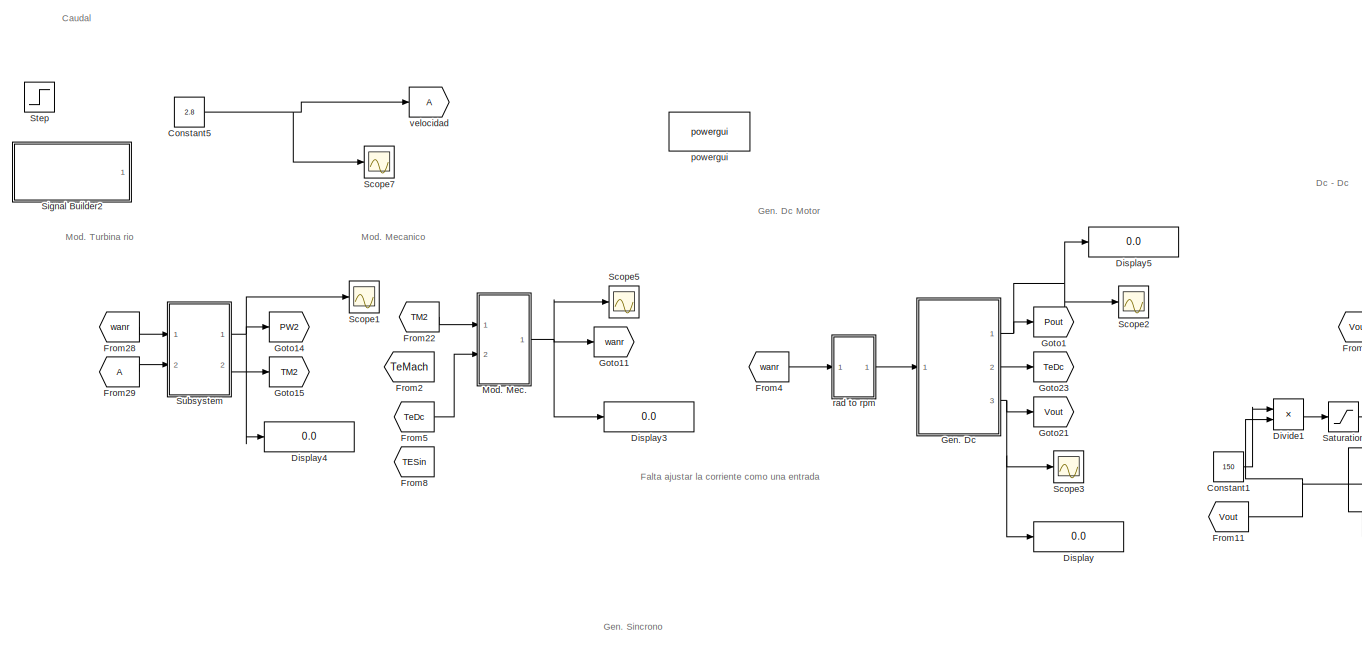
[diagram: root canvas - part 1/4, top center region]
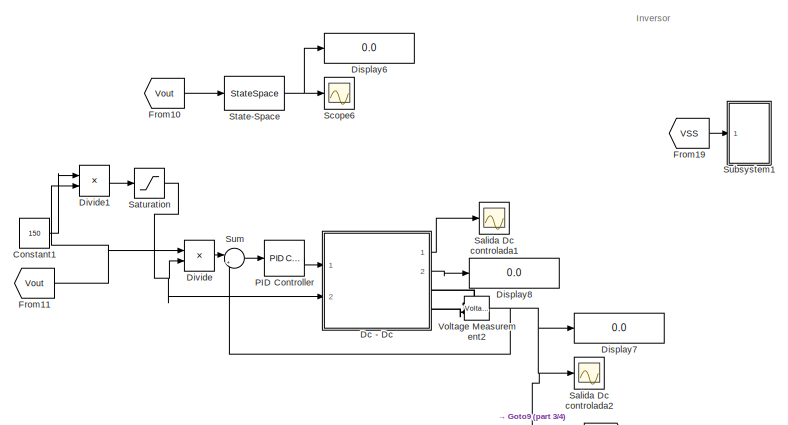
[diagram: root canvas - part 2/4, middle right region]
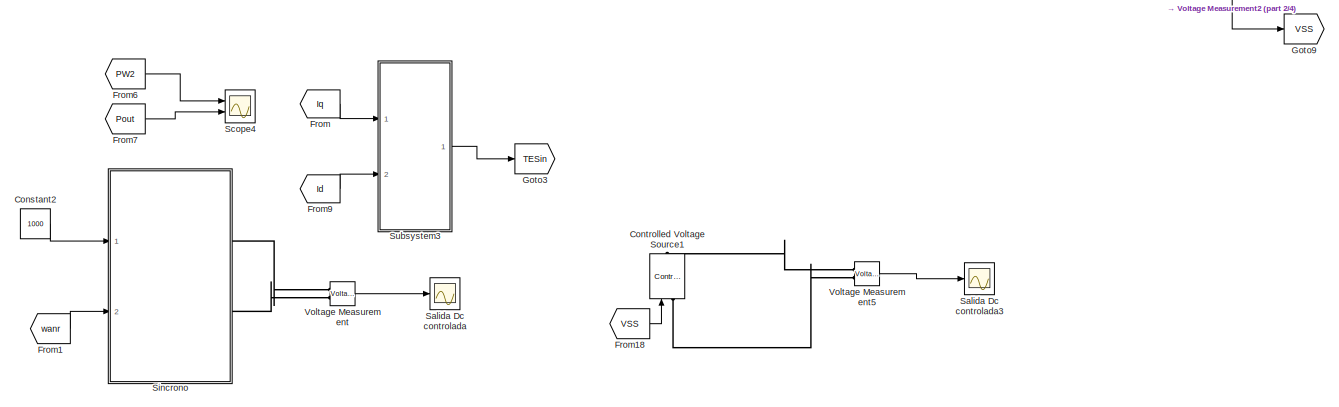
[diagram: root canvas - part 3/4, bottom center region]
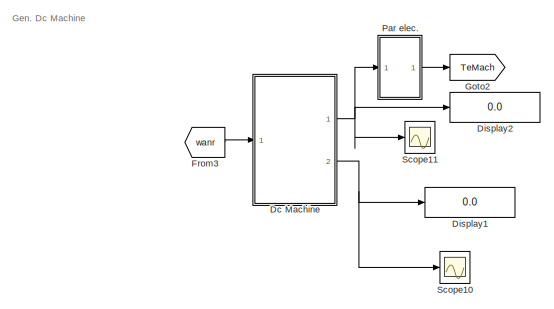
[diagram: root canvas - part 4/4, bottom left region]
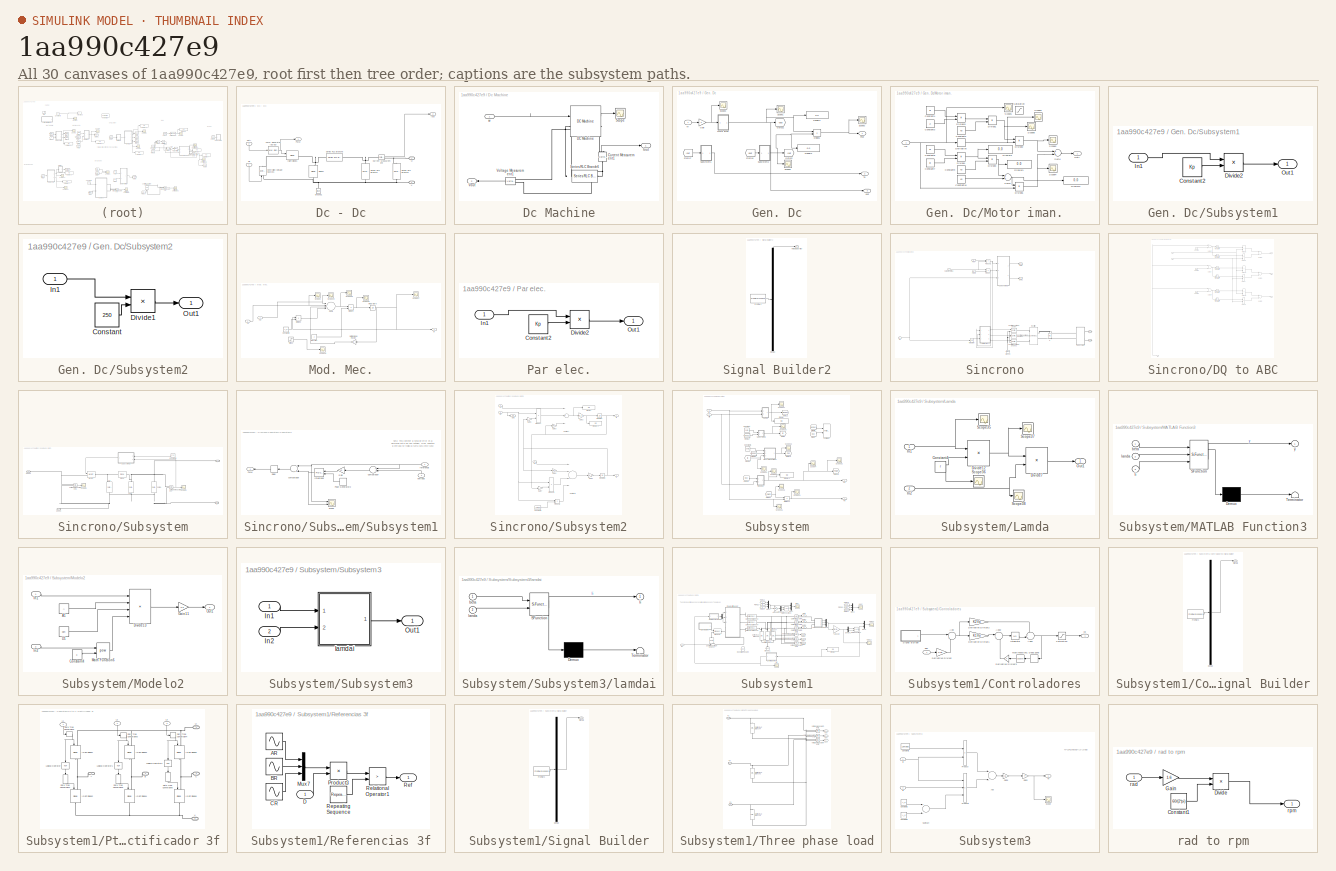
[diagram: thumbnail index - all 30 canvases of the model, root first then tree order]
MODEL slx_1aa990c427e9
KIND model
CONFIG AbsTol = auto
CONFIG EnableMultiTasking = off
CONFIG FixedStep = 50e-3
CONFIG MaxStep = 0.01
CONFIG MinStep = auto
CONFIG RelTol = 1e-3
CONFIG SampleTimeConstraint = Unconstrained
CONFIG Solver = ode45
CONFIG SolverName = ode45
CONFIG StartTime = 0.0
CONFIG StopTime = 0.5
BLOCK [Constant] Constant1
  Value = 150
BLOCK [Constant] Constant2
  Commented = on
  Value = 1000
BLOCK [Constant] Constant5
  Value = 2.8
BLOCK [Reference] Controlled Voltage Source1  REF=powerlib/Electrical
Sources/Controlled Voltage Source
  Commented = on
  Ports = [1, 0, 0, 0, 0, 1, 1]
  SourceBlock = powerlib/Electrical\nSources/Controlled Voltage Source
  SourceProductBaseCode = PS
  SourceProductName = Simscape Power Systems
  SourceType = Controlled Voltage Source
BLOCK [SubSystem] Dc - Dc
  Ports = [2, 2, 0, 0, 0, 0, 2]
  RequestExecContextInheritance = off
  Variant = off
BLOCK [Reference] Dc - Dc/Controlled Voltage Source1  REF=powerlib/Electrical
Sources/Controlled Voltage Source
  Ports = [1, 0, 0, 0, 0, 1, 1]
  SourceBlock = powerlib/Electrical\nSources/Controlled Voltage Source
  SourceProductBaseCode = PS
  SourceProductName = Simscape Power Systems
  SourceType = Controlled Voltage Source
BLOCK [Reference] Dc - Dc/Current Measurement  REF=powerlib/Measurements/Current Measurement
  Ports = [0, 1, 0, 0, 0, 1, 1]
  SourceBlock = powerlib/Measurements/Current Measurement
  SourceProductBaseCode = PS
  SourceProductName = Simscape Power Systems
  SourceType = Current Measurement
  UserDataPersistent = on
BLOCK [Reference] Dc - Dc/Diode1  REF=powerlib/Power
Electronics/Diode
  Ports = [0, 1, 0, 0, 0, 1, 1]
  SourceBlock = powerlib/Power\nElectronics/Diode
  SourceProductBaseCode = PS
  SourceProductName = Simscape Power Systems
  SourceType = Diode
BLOCK [Inport] Dc - Dc/Duty
  IconDisplay = Port number
  Port = 2
BLOCK [Reference] Dc - Dc/Ground1  REF=powerlib/Elements/Ground
  Ports = [0, 0, 0, 0, 0, 1]
  SourceBlock = powerlib/Elements/Ground
  SourceProductBaseCode = PS
  SourceProductName = Simscape Power Systems
  SourceType = Ground
BLOCK [Reference] Dc - Dc/IGBT//Diode1  REF=powerlib/Power
Electronics/IGBT//Diode
  Ports = [1, 1, 0, 0, 0, 1, 1]
  SourceBlock = powerlib/Power\nElectronics/IGBT//Diode
  SourceProductBaseCode = PS
  SourceProductName = Simscape Power Systems
  SourceType = IGBT/Diode
BLOCK [Outport] Dc - Dc/Iout
  IconDisplay = Port number
  Port = 2
BLOCK [Outport] Dc - Dc/PWM
  IconDisplay = Port number
BLOCK [Reference] Dc - Dc/PWM Generator (DC-DC)  REF=powerlib_meascontrol/Pulse & Signal
Generators/PWM Generator
(DC-DC)
  Ports = [1, 1]
  SourceBlock = powerlib_meascontrol/Pulse & Signal\nGenerators/PWM Generator\n(DC-DC)
  SourceProductBaseCode = PS
  SourceProductName = Simscape Power Systems
  SourceType = PWM Generator (DC-DC)
BLOCK [Reference] Dc - Dc/Series RLC Branch3  REF=powerlib/Elements/Series RLC Branch
  Ports = [0, 0, 0, 0, 0, 1, 1]
  SourceBlock = powerlib/Elements/Series RLC Branch
  SourceProductBaseCode = PS
  SourceProductName = Simscape Power Systems
  SourceType = Series RLC Branch
BLOCK [Reference] Dc - Dc/Series RLC Branch4  REF=powerlib/Elements/Series RLC Branch
  Ports = [0, 0, 0, 0, 0, 1, 1]
  SourceBlock = powerlib/Elements/Series RLC Branch
  SourceProductBaseCode = PS
  SourceProductName = Simscape Power Systems
  SourceType = Series RLC Branch
BLOCK [Reference] Dc - Dc/Series RLC Branch5  REF=powerlib/Elements/Series RLC Branch
  Ports = [0, 0, 0, 0, 0, 1, 1]
  SourceBlock = powerlib/Elements/Series RLC Branch
  SourceProductBaseCode = PS
  SourceProductName = Simscape Power Systems
  SourceType = Series RLC Branch
BLOCK [PMIOPort] Dc - Dc/V+
  Port = 1
  Side = Right
BLOCK [PMIOPort] Dc - Dc/V-
  Port = 2
  Side = Right
BLOCK [Inport] Dc - Dc/Vin
  IconDisplay = Port number
BLOCK [SubSystem] Dc Machine
  Commented = on
  Ports = [1, 2]
  RequestExecContextInheritance = off
  Variant = off
BLOCK [Reference] Dc Machine/Current Measurement1  REF=powerlib/Measurements/Current Measurement
  Ports = [0, 1, 0, 0, 0, 1, 1]
  SourceBlock = powerlib/Measurements/Current Measurement
  SourceProductBaseCode = PS
  SourceProductName = Simscape Power Systems
  SourceType = Current Measurement
  UserDataPersistent = on
BLOCK [Reference] Dc Machine/DC Machine  REF=powerlib/Machines/DC Machine
  Ports = [1, 1, 0, 0, 0, 1, 1]
  SourceBlock = powerlib/Machines/DC Machine
  SourceProductBaseCode = PS
  SourceProductName = Simscape Power Systems
  SourceType = DC machine
BLOCK [Outport] Dc Machine/Iout
  IconDisplay = Port number
BLOCK [Scope] Dc Machine/Scope
  NumInputPorts = 1
  Ports = [1]
  ScopeSpecificationString = C++SS(StrPVP('Open','off'),StrPVP('TimeRange','auto'),StrPVP('TickLabels','OneTimeTick'),StrPVP('ShowLegends','off'),StrPVP('LimitDataPoints','off'),StrPVP('MaxDataPoints','5000'),StrPVP('SaveToWorkspace','off'),StrPVP('SaveName','ScopeData1'),StrPVP('YMin','-47.25775'),StrPVP('YMax','258.37438'),StrPVP('BlockParamSampleInput','off'),StrPVP('BlockParamSampleTime','-1'),StrPVP('ZoomMode','on'),StrP...<+584ch>
BLOCK [Reference] Dc Machine/Series RLC Branch6  REF=powerlib/Elements/Series RLC Branch
  Ports = [0, 0, 0, 0, 0, 1, 1]
  SourceBlock = powerlib/Elements/Series RLC Branch
  SourceProductBaseCode = PS
  SourceProductName = Simscape Power Systems
  SourceType = Series RLC Branch
BLOCK [Reference] Dc Machine/Voltage Measurement1  REF=powerlib/Measurements/Voltage Measurement
  Ports = [0, 1, 0, 0, 0, 2]
  SourceBlock = powerlib/Measurements/Voltage Measurement
  SourceProductBaseCode = PS
  SourceProductName = Simscape Power Systems
  SourceType = Voltage Measurement
  UserDataPersistent = on
BLOCK [Outport] Dc Machine/Vout
  IconDisplay = Port number
  Port = 2
BLOCK [Inport] Dc Machine/w
  IconDisplay = Port number
BLOCK [Display] Display
  Decimation = 1
  Ports = [1]
BLOCK [Display] Display1
  Commented = on
  Decimation = 1
  Ports = [1]
BLOCK [Display] Display2
  Commented = on
  Decimation = 1
  Ports = [1]
BLOCK [Display] Display3
  Decimation = 1
  Ports = [1]
BLOCK [Display] Display4
  Decimation = 1
  Ports = [1]
BLOCK [Display] Display5
  Decimation = 1
  Ports = [1]
BLOCK [Display] Display6
  Decimation = 1
  Ports = [1]
BLOCK [Display] Display7
  Decimation = 1
  Ports = [1]
BLOCK [Display] Display8
  Decimation = 1
  Ports = [1]
BLOCK [Product] Divide
  InputSameDT = off
  Inputs = **
  OutDataTypeStr = Inherit: Inherit via internal rule
  Ports = [2, 1]
  RndMeth = Floor
  SaturateOnIntegerOverflow = off
BLOCK [Product] Divide1
  InputSameDT = off
  Inputs = */
  OutDataTypeStr = Inherit: Inherit via internal rule
  Ports = [2, 1]
  RndMeth = Floor
  SaturateOnIntegerOverflow = off
BLOCK [From] From
  Commented = on
  GotoTag = Iq
  TagVisibility = global
BLOCK [From] From1
  Commented = on
  GotoTag = wanr
BLOCK [From] From10
  GotoTag = Vout
BLOCK [From] From11
  GotoTag = Vout
BLOCK [From] From18
  Commented = on
  GotoTag = VSS
BLOCK [From] From19
  GotoTag = VSS
BLOCK [From] From2
  GotoTag = TeMach
BLOCK [From] From22
  GotoTag = TM2
BLOCK [From] From28
  GotoTag = wanr
BLOCK [From] From29
BLOCK [From] From3
  Commented = on
  GotoTag = wanr
BLOCK [From] From4
  GotoTag = wanr
BLOCK [From] From5
  GotoTag = TeDc
BLOCK [From] From6
  Commented = on
  GotoTag = PW2
BLOCK [From] From7
  Commented = on
  GotoTag = Pout
BLOCK [From] From8
  GotoTag = TESin
BLOCK [From] From9
  Commented = on
  GotoTag = Id
  TagVisibility = global
BLOCK [SubSystem] Gen. Dc
  Ports = [1, 3]
  RequestExecContextInheritance = off
  Variant = off
BLOCK [Display] Gen. Dc/Display2
  Decimation = 1
  Ports = [1]
BLOCK [Display] Gen. Dc/Display3
  Decimation = 1
  Ports = [1]
BLOCK [Product] Gen. Dc/Divide1
  InputSameDT = off
  Inputs = **
  OutDataTypeStr = Inherit: Inherit via internal rule
  Ports = [2, 1]
  RndMeth = Floor
  SaturateOnIntegerOverflow = off
BLOCK [From] Gen. Dc/From10
  GotoTag = Vout
BLOCK [From] Gen. Dc/From47
  GotoTag = Iout
BLOCK [Gain] Gen. Dc/Gain
  OutDataTypeStr = Inherit: Inherit via internal rule
  ParamDataTypeStr = Inherit: Inherit via internal rule
  SaturateOnIntegerOverflow = off
BLOCK [Goto] Gen. Dc/Goto21
  GotoTag = Vout
BLOCK [Goto] Gen. Dc/Goto22
  GotoTag = Iout
BLOCK [SubSystem] Gen. Dc/Motor iman.
  Ports = [1, 1]
  RequestExecContextInheritance = off
  Variant = off
BLOCK [Constant] Gen. Dc/Motor iman./Constant10
  Value = Kb
BLOCK [Constant] Gen. Dc/Motor iman./Constant3
  Value = Ji
BLOCK [Constant] Gen. Dc/Motor iman./Constant4
  Value = Ri
BLOCK [Constant] Gen. Dc/Motor iman./Constant6
  Value = Kp
BLOCK [Constant] Gen. Dc/Motor iman./Constant7
  Value = Bi
BLOCK [Constant] Gen. Dc/Motor iman./Constant8
  Value = Ri
BLOCK [Constant] Gen. Dc/Motor iman./Constant9
  Value = Kp
BLOCK [Derivative] Gen. Dc/Motor iman./Derivative
BLOCK [Display] Gen. Dc/Motor iman./Display1
  Decimation = 1
  Ports = [1]
BLOCK [Display] Gen. Dc/Motor iman./Display2
  Decimation = 1
  Ports = [1]
BLOCK [Display] Gen. Dc/Motor iman./Display3
  Decimation = 1
  Ports = [1]
BLOCK [Product] Gen. Dc/Motor iman./Divide1
  InputSameDT = off
  Inputs = */
  OutDataTypeStr = Inherit: Inherit via internal rule
  Ports = [2, 1]
BLOCK [Product] Gen. Dc/Motor iman./Divide13
  InputSameDT = off
  Inputs = **
  OutDataTypeStr = Inherit: Inherit via internal rule
  Ports = [2, 1]
BLOCK [Product] Gen. Dc/Motor iman./Divide2
  InputSameDT = off
  Inputs = **
  OutDataTypeStr = Inherit: Inherit via internal rule
  Ports = [2, 1]
BLOCK [Product] Gen. Dc/Motor iman./Divide3
  InputSameDT = off
  Inputs = */
  OutDataTypeStr = Inherit: Inherit via internal rule
  Ports = [2, 1]
BLOCK [Product] Gen. Dc/Motor iman./Divide4
  InputSameDT = off
  Inputs = **
  OutDataTypeStr = Inherit: Inherit via internal rule
  Ports = [2, 1]
BLOCK [Product] Gen. Dc/Motor iman./Divide5
  InputSameDT = off
  Inputs = **
  OutDataTypeStr = Inherit: Inherit via internal rule
  Ports = [2, 1]
BLOCK [Inport] Gen. Dc/Motor iman./In1
  IconDisplay = Port number
BLOCK [Outport] Gen. Dc/Motor iman./Out1
  IconDisplay = Port number
BLOCK [Saturate] Gen. Dc/Motor iman./Saturation
  InputPortMap = u0
  Ports = [1, 1]
BLOCK [Scope] Gen. Dc/Motor iman./Scope1
  NumInputPorts = 1
  Ports = [1]
  ScopeSpecificationString = C++SS(StrPVP('Open','off'),StrPVP('TimeRange','auto'),StrPVP('TickLabels','OneTimeTick'),StrPVP('ShowLegends','off'),StrPVP('LimitDataPoints','off'),StrPVP('MaxDataPoints','5000'),StrPVP('SaveToWorkspace','off'),StrPVP('SaveName','ScopeData5'),StrPVP('YMin','28.5668'),StrPVP('YMax','1270.78625'),StrPVP('BlockParamSampleInput','off'),StrPVP('BlockParamSampleTime','-1'),StrPVP('ZoomMode','on'),StrPV...<+582ch>
BLOCK [Scope] Gen. Dc/Motor iman./Scope2
  NumInputPorts = 1
  Ports = [1]
  ScopeSpecificationString = C++SS(StrPVP('Open','off'),StrPVP('TimeRange','auto'),StrPVP('TickLabels','OneTimeTick'),StrPVP('ShowLegends','off'),StrPVP('LimitDataPoints','off'),StrPVP('MaxDataPoints','5000'),StrPVP('SaveToWorkspace','off'),StrPVP('SaveName','ScopeData1'),StrPVP('YMin','-89941.33333'),StrPVP('YMax','668387.55556'),StrPVP('BlockParamSampleInput','off'),StrPVP('BlockParamSampleTime','-1'),StrPVP('ZoomMode','on'...<+589ch>
BLOCK [Scope] Gen. Dc/Motor iman./Scope3
  NumInputPorts = 1
  Ports = [1]
  ScopeSpecificationString = C++SS(StrPVP('Open','off'),StrPVP('TimeRange','auto'),StrPVP('TickLabels','OneTimeTick'),StrPVP('ShowLegends','off'),StrPVP('LimitDataPoints','off'),StrPVP('MaxDataPoints','5000'),StrPVP('SaveToWorkspace','off'),StrPVP('SaveName','ScopeData4'),StrPVP('YMin','-2341.52186'),StrPVP('YMax','7980.68437'),StrPVP('BlockParamSampleInput','off'),StrPVP('BlockParamSampleTime','-1'),StrPVP('ZoomMode','on'),S...<+586ch>
BLOCK [Scope] Gen. Dc/Motor iman./Scope4
  NumInputPorts = 1
  Ports = [1]
  ScopeSpecificationString = C++SS(StrPVP('Open','off'),StrPVP('TimeRange','auto'),StrPVP('TickLabels','OneTimeTick'),StrPVP('ShowLegends','off'),StrPVP('LimitDataPoints','off'),StrPVP('MaxDataPoints','5000'),StrPVP('SaveToWorkspace','off'),StrPVP('SaveName','ScopeData2'),StrPVP('YMin','6.06143'),StrPVP('YMax','269.64226'),StrPVP('BlockParamSampleInput','off'),StrPVP('BlockParamSampleTime','-1'),StrPVP('ZoomMode','on'),StrPVP...<+581ch>
BLOCK [Scope] Gen. Dc/Motor iman./Scope5
  NumInputPorts = 1
  Ports = [1]
  ScopeSpecificationString = C++SS(StrPVP('Open','off'),StrPVP('TimeRange','auto'),StrPVP('TickLabels','OneTimeTick'),StrPVP('ShowLegends','off'),StrPVP('LimitDataPoints','off'),StrPVP('MaxDataPoints','5000'),StrPVP('SaveToWorkspace','off'),StrPVP('SaveName','ScopeData1'),StrPVP('YMin','0.72222'),StrPVP('YMax','2.72222'),StrPVP('BlockParamSampleInput','off'),StrPVP('BlockParamSampleTime','-1'),StrPVP('ZoomMode','on'),StrPVP('...<+579ch>
BLOCK [Sum] Gen. Dc/Motor iman./Sum4
  InputSameDT = off
  OutDataTypeStr = Inherit: Inherit via internal rule
  Ports = [2, 1]
  SaturateOnIntegerOverflow = off
BLOCK [Sum] Gen. Dc/Motor iman./Sum6
  InputSameDT = off
  OutDataTypeStr = Inherit: Inherit via internal rule
  Ports = [2, 1]
  SaturateOnIntegerOverflow = off
BLOCK [Outport] Gen. Dc/Pout
  IconDisplay = Port number
BLOCK [Scope] Gen. Dc/Scope1
  NumInputPorts = 1
  Ports = [1]
  ScopeSpecificationString = C++SS(StrPVP('Open','off'),StrPVP('TimeRange','auto'),StrPVP('TickLabels','OneTimeTick'),StrPVP('ShowLegends','off'),StrPVP('LimitDataPoints','off'),StrPVP('MaxDataPoints','5000'),StrPVP('SaveToWorkspace','off'),StrPVP('SaveName','ScopeData1'),StrPVP('YMin','-424.49411'),StrPVP('YMax','4144.64208'),StrPVP('BlockParamSampleInput','off'),StrPVP('BlockParamSampleTime','-1'),StrPVP('ZoomMode','on'),St...<+585ch>
BLOCK [Scope] Gen. Dc/Scope2
  NumInputPorts = 1
  Ports = [1]
  ScopeSpecificationString = C++SS(StrPVP('Open','off'),StrPVP('TimeRange','auto'),StrPVP('TickLabels','OneTimeTick'),StrPVP('ShowLegends','off'),StrPVP('LimitDataPoints','off'),StrPVP('MaxDataPoints','5000'),StrPVP('SaveToWorkspace','off'),StrPVP('SaveName','ScopeData3'),StrPVP('YMin','-530.81519'),StrPVP('YMax','4777.33676'),StrPVP('BlockParamSampleInput','off'),StrPVP('BlockParamSampleTime','-1'),StrPVP('ZoomMode','on'),St...<+585ch>
BLOCK [Scope] Gen. Dc/Scope3
  NumInputPorts = 1
  Ports = [1]
  ScopeSpecificationString = C++SS(StrPVP('Open','off'),StrPVP('TimeRange','auto'),StrPVP('TickLabels','OneTimeTick'),StrPVP('ShowLegends','off'),StrPVP('LimitDataPoints','off'),StrPVP('MaxDataPoints','5000'),StrPVP('SaveToWorkspace','off'),StrPVP('SaveName','ScopeData2'),StrPVP('YMin','5.04136'),StrPVP('YMax','154.62776'),StrPVP('BlockParamSampleInput','off'),StrPVP('BlockParamSampleTime','-1'),StrPVP('ZoomMode','on'),StrPVP...<+581ch>
BLOCK [Scope] Gen. Dc/Scope6
  NumInputPorts = 1
  Ports = [1]
  ScopeSpecificationString = C++SS(StrPVP('Open','off'),StrPVP('TimeRange','auto'),StrPVP('TickLabels','OneTimeTick'),StrPVP('ShowLegends','off'),StrPVP('LimitDataPoints','off'),StrPVP('MaxDataPoints','5000'),StrPVP('SaveToWorkspace','off'),StrPVP('SaveName','ScopeData2'),StrPVP('YMin','-293.54299'),StrPVP('YMax','2643.18365'),StrPVP('BlockParamSampleInput','off'),StrPVP('BlockParamSampleTime','-1'),StrPVP('ZoomMode','on'),St...<+585ch>
BLOCK [SubSystem] Gen. Dc/Subsystem1
  Ports = [1, 1]
  RequestExecContextInheritance = off
  Variant = off
BLOCK [Constant] Gen. Dc/Subsystem1/Constant2
  Value = Kp
BLOCK [Product] Gen. Dc/Subsystem1/Divide2
  InputSameDT = off
  Inputs = **
  OutDataTypeStr = Inherit: Inherit via internal rule
  Ports = [2, 1]
  RndMeth = Floor
  SaturateOnIntegerOverflow = off
BLOCK [Inport] Gen. Dc/Subsystem1/In1
  IconDisplay = Port number
BLOCK [Outport] Gen. Dc/Subsystem1/Out1
  IconDisplay = Port number
BLOCK [SubSystem] Gen. Dc/Subsystem2
  Ports = [1, 1]
  RequestExecContextInheritance = off
  Variant = off
BLOCK [Constant] Gen. Dc/Subsystem2/Constant
  Value = 250
BLOCK [Product] Gen. Dc/Subsystem2/Divide1
  InputSameDT = off
  Inputs = */
  OutDataTypeStr = Inherit: Inherit via internal rule
  Ports = [2, 1]
  RndMeth = Floor
  SaturateOnIntegerOverflow = off
BLOCK [Inport] Gen. Dc/Subsystem2/In1
  IconDisplay = Port number
BLOCK [Outport] Gen. Dc/Subsystem2/Out1
  IconDisplay = Port number
BLOCK [Outport] Gen. Dc/Te
  IconDisplay = Port number
  Port = 2
BLOCK [Outport] Gen. Dc/Vout
  IconDisplay = Port number
  Port = 3
BLOCK [Inport] Gen. Dc/W
  IconDisplay = Port number
BLOCK [Goto] Goto1
  GotoTag = Pout
BLOCK [Goto] Goto11
  GotoTag = wanr
BLOCK [Goto] Goto14
  GotoTag = PW2
BLOCK [Goto] Goto15
  GotoTag = TM2
BLOCK [Goto] Goto2
  Commented = on
  GotoTag = TeMach
BLOCK [Goto] Goto21
  GotoTag = Vout
BLOCK [Goto] Goto23
  GotoTag = TeDc
BLOCK [Goto] Goto3
  Commented = on
  GotoTag = TESin
BLOCK [Goto] Goto9
  GotoTag = VSS
BLOCK [SubSystem] Mod. Mec.
  Ports = [2, 1]
  RequestExecContextInheritance = off
  Variant = off
BLOCK [Constant] Mod. Mec./Constant3
  Value = T_d
BLOCK [Product] Mod. Mec./Divide2
  InputSameDT = off
  Inputs = **
  OutDataTypeStr = Inherit: Inherit via internal rule
  Ports = [2, 1]
  RndMeth = Floor
  SaturateOnIntegerOverflow = off
BLOCK [Product] Mod. Mec./Divide9
  InputSameDT = off
  Inputs = */
  OutDataTypeStr = Inherit: Inherit via internal rule
  Ports = [2, 1]
  RndMeth = Floor
  SaturateOnIntegerOverflow = off
BLOCK [Integrator] Mod. Mec./Integrator6
  InitialCondition = 10
  Ports = [1, 1]
BLOCK [Gain] Mod. Mec./Oeficiente de friccion
  Gain = B
  OutDataTypeStr = Inherit: Inherit via internal rule
  ParamDataTypeStr = Inherit: Inherit via internal rule
  SaturateOnIntegerOverflow = off
BLOCK [Scope] Mod. Mec./Scope2
  NumInputPorts = 1
  Ports = [1]
  ScopeSpecificationString = C++SS(StrPVP('Open','off'),StrPVP('TimeRange','auto'),StrPVP('TickLabels','OneTimeTick'),StrPVP('ShowLegends','off'),StrPVP('LimitDataPoints','off'),StrPVP('MaxDataPoints','5000'),StrPVP('SaveToWorkspace','off'),StrPVP('SaveName','ScopeData3'),StrPVP('YMin','-8.40011'),StrPVP('YMax','72.05433'),StrPVP('BlockParamSampleInput','off'),StrPVP('BlockParamSampleTime','-1'),StrPVP('ZoomMode','on'),StrPVP...<+581ch>
BLOCK [Scope] Mod. Mec./Scope27
  NumInputPorts = 1
  Ports = [1]
  ScopeSpecificationString = C++SS(StrPVP('Open','off'),StrPVP('TimeRange','auto'),StrPVP('TickLabels','OneTimeTick'),StrPVP('ShowLegends','off'),StrPVP('LimitDataPoints','off'),StrPVP('MaxDataPoints','5000'),StrPVP('SaveToWorkspace','off'),StrPVP('SaveName','ScopeData11'),StrPVP('YMin','2.92579'),StrPVP('YMax','73.66785'),StrPVP('BlockParamSampleInput','off'),StrPVP('BlockParamSampleTime','-1'),StrPVP('ZoomMode','on'),StrPVP...<+486ch>
BLOCK [Scope] Mod. Mec./Scope28
  NumInputPorts = 1
  Ports = [1]
  ScopeSpecificationString = C++SS(StrPVP('Open','off'),StrPVP('TimeRange','auto'),StrPVP('TickLabels','OneTimeTick'),StrPVP('ShowLegends','off'),StrPVP('LimitDataPoints','off'),StrPVP('MaxDataPoints','5000'),StrPVP('SaveToWorkspace','off'),StrPVP('SaveName','ScopeData12'),StrPVP('YMin','-12.39659'),StrPVP('YMax','111.55513'),StrPVP('BlockParamSampleInput','off'),StrPVP('BlockParamSampleTime','-1'),StrPVP('ZoomMode','on'),Str...<+584ch>
BLOCK [Scope] Mod. Mec./Scope29
  NumInputPorts = 1
  Ports = [1]
  ScopeSpecificationString = C++SS(StrPVP('Open','off'),StrPVP('TimeRange','auto'),StrPVP('TickLabels','OneTimeTick'),StrPVP('ShowLegends','off'),StrPVP('LimitDataPoints','off'),StrPVP('MaxDataPoints','5000'),StrPVP('SaveToWorkspace','off'),StrPVP('SaveName','ScopeData13'),StrPVP('YMin','-12.44641'),StrPVP('YMax','112.01765'),StrPVP('BlockParamSampleInput','off'),StrPVP('BlockParamSampleTime','-1'),StrPVP('ZoomMode','on'),Str...<+584ch>
BLOCK [Scope] Mod. Mec./Scope30
  NumInputPorts = 1
  Ports = [1]
  ScopeSpecificationString = C++SS(StrPVP('Open','off'),StrPVP('TimeRange','auto'),StrPVP('TickLabels','OneTimeTick'),StrPVP('ShowLegends','off'),StrPVP('LimitDataPoints','off'),StrPVP('MaxDataPoints','5000'),StrPVP('SaveToWorkspace','off'),StrPVP('SaveName','ScopeData14'),StrPVP('YMin','-0.09284'),StrPVP('YMax','1.03317'),StrPVP('BlockParamSampleInput','off'),StrPVP('BlockParamSampleTime','-1'),StrPVP('ZoomMode','on'),StrPVP...<+581ch>
BLOCK [Scope] Mod. Mec./Scope39
  NumInputPorts = 1
  Ports = [1]
  ScopeSpecificationString = C++SS(StrPVP('Open','off'),StrPVP('TimeRange','auto'),StrPVP('TickLabels','OneTimeTick'),StrPVP('ShowLegends','off'),StrPVP('LimitDataPoints','off'),StrPVP('MaxDataPoints','5000'),StrPVP('SaveToWorkspace','off'),StrPVP('SaveName','ScopeData7'),StrPVP('YMin','3.00000'),StrPVP('YMax','5.00000'),StrPVP('BlockParamSampleInput','off'),StrPVP('BlockParamSampleTime','-1'),StrPVP('ZoomMode','on'),StrPVP('...<+580ch>
BLOCK [Step] Mod. Mec./Step1
  After = 0
  Before = 4
  SampleTime = 0
  Time = 3
BLOCK [Sum] Mod. Mec./Sum4
  InputSameDT = off
  Inputs = |+---
  OutDataTypeStr = Inherit: Inherit via internal rule
  Ports = [4, 1]
  SaturateOnIntegerOverflow = off
BLOCK [Inport] Mod. Mec./Te
  IconDisplay = Port number
  Port = 2
BLOCK [Inport] Mod. Mec./Tm
  IconDisplay = Port number
BLOCK [Outport] Mod. Mec./W
  IconDisplay = Port number
BLOCK [Constant] Mod. Mec./inercia J
  Value = J
BLOCK [Reference] PID Controller  REF=simulink/Continuous/PID Controller
  Ports = [1, 1]
  SourceBlock = simulink/Continuous/PID Controller
  SourceProductBaseCode = SL
  SourceProductName = Simulink
  SourceType = PID 1dof
BLOCK [SubSystem] Par elec.
  Commented = on
  Ports = [1, 1]
  RequestExecContextInheritance = off
  Variant = off
BLOCK [Constant] Par elec./Constant2
  Value = Kp
BLOCK [Product] Par elec./Divide2
  InputSameDT = off
  Inputs = **
  OutDataTypeStr = Inherit: Inherit via internal rule
  Ports = [2, 1]
  RndMeth = Floor
  SaturateOnIntegerOverflow = off
BLOCK [Inport] Par elec./In1
  IconDisplay = Port number
BLOCK [Outport] Par elec./Out1
  IconDisplay = Port number
BLOCK [Scope] Salida Dc controlada
  Commented = on
  NumInputPorts = 1
  Ports = [1]
  ScopeSpecificationString = C++SS(StrPVP('Open','off'),StrPVP('TimeRange','auto'),StrPVP('TickLabels','OneTimeTick'),StrPVP('ShowLegends','off'),StrPVP('LimitDataPoints','on'),StrPVP('MaxDataPoints','5000'),StrPVP('SaveToWorkspace','off'),StrPVP('SaveName','ScopeData1'),StrPVP('YMin','189.7257'),StrPVP('YMax','190.6882'),StrPVP('BlockParamSampleInput','off'),StrPVP('BlockParamSampleTime','-1'),StrPVP('ZoomMode','on'),StrPVP(...<+568ch>
BLOCK [Scope] Salida Dc controlada1
  NumInputPorts = 1
  Ports = [1]
  ScopeSpecificationString = C++SS(StrPVP('Open','off'),StrPVP('TimeRange','auto'),StrPVP('TickLabels','OneTimeTick'),StrPVP('ShowLegends','off'),StrPVP('LimitDataPoints','on'),StrPVP('MaxDataPoints','5000'),StrPVP('SaveToWorkspace','off'),StrPVP('SaveName','ScopeData2'),StrPVP('YMin','-0.125'),StrPVP('YMax','1.125'),StrPVP('BlockParamSampleInput','off'),StrPVP('BlockParamSampleTime','-1'),StrPVP('ZoomMode','on'),StrPVP('Grid...<+563ch>
BLOCK [Scope] Salida Dc controlada2
  NumInputPorts = 1
  Ports = [1]
  ScopeSpecificationString = C++SS(StrPVP('Open','off'),StrPVP('TimeRange','auto'),StrPVP('TickLabels','OneTimeTick'),StrPVP('ShowLegends','off'),StrPVP('LimitDataPoints','on'),StrPVP('MaxDataPoints','5000'),StrPVP('SaveToWorkspace','off'),StrPVP('SaveName','ScopeData1'),StrPVP('YMin','147.34883'),StrPVP('YMax','152.85831'),StrPVP('BlockParamSampleInput','off'),StrPVP('BlockParamSampleTime','-1'),StrPVP('ZoomMode','on'),StrPV...<+570ch>
BLOCK [Scope] Salida Dc controlada3
  Commented = on
  NumInputPorts = 1
  Ports = [1]
  ScopeSpecificationString = C++SS(StrPVP('Open','off'),StrPVP('TimeRange','auto'),StrPVP('TickLabels','OneTimeTick'),StrPVP('ShowLegends','off'),StrPVP('LimitDataPoints','on'),StrPVP('MaxDataPoints','5000'),StrPVP('SaveToWorkspace','off'),StrPVP('SaveName','ScopeData1'),StrPVP('YMin','151.28348'),StrPVP('YMax','152.80042'),StrPVP('BlockParamSampleInput','off'),StrPVP('BlockParamSampleTime','-1'),StrPVP('ZoomMode','on'),StrPV...<+570ch>
BLOCK [Saturate] Saturation
  InputPortMap = u0
  LowerLimit = 0
  Ports = [1, 1]
  UpperLimit = 1
BLOCK [Scope] Scope1
  NumInputPorts = 1
  Ports = [1]
  ScopeSpecificationString = C++SS(StrPVP('Open','off'),StrPVP('TimeRange','auto'),StrPVP('TickLabels','OneTimeTick'),StrPVP('ShowLegends','off'),StrPVP('LimitDataPoints','off'),StrPVP('MaxDataPoints','5000'),StrPVP('SaveToWorkspace','off'),StrPVP('SaveName','ScopeData4'),StrPVP('YMin','-950.97876'),StrPVP('YMax','4703.0367'),StrPVP('BlockParamSampleInput','off'),StrPVP('BlockParamSampleTime','-1'),StrPVP('ZoomMode','on'),Str...<+584ch>
BLOCK [Scope] Scope10
  Commented = on
  NumInputPorts = 1
  Ports = [1]
  ScopeSpecificationString = C++SS(StrPVP('Open','off'),StrPVP('TimeRange','auto'),StrPVP('TickLabels','OneTimeTick'),StrPVP('ShowLegends','off'),StrPVP('LimitDataPoints','off'),StrPVP('MaxDataPoints','5000'),StrPVP('SaveToWorkspace','off'),StrPVP('SaveName','ScopeData2'),StrPVP('YMin','-22.26963'),StrPVP('YMax','200.42667'),StrPVP('BlockParamSampleInput','off'),StrPVP('BlockParamSampleTime','-1'),StrPVP('ZoomMode','on'),StrP...<+584ch>
BLOCK [Scope] Scope11
  Commented = on
  NumInputPorts = 1
  Ports = [1]
  ScopeSpecificationString = C++SS(StrPVP('Open','off'),StrPVP('TimeRange','auto'),StrPVP('TickLabels','OneTimeTick'),StrPVP('ShowLegends','off'),StrPVP('LimitDataPoints','off'),StrPVP('MaxDataPoints','5000'),StrPVP('SaveToWorkspace','off'),StrPVP('SaveName','ScopeData3'),StrPVP('YMin','-0.01679'),StrPVP('YMax','0.15115'),StrPVP('BlockParamSampleInput','off'),StrPVP('BlockParamSampleTime','-1'),StrPVP('ZoomMode','on'),StrPVP(...<+580ch>
BLOCK [Scope] Scope2
  NumInputPorts = 1
  Ports = [1]
  ScopeSpecificationString = C++SS(StrPVP('Open','off'),StrPVP('TimeRange','auto'),StrPVP('TickLabels','OneTimeTick'),StrPVP('ShowLegends','off'),StrPVP('LimitDataPoints','off'),StrPVP('MaxDataPoints','5000'),StrPVP('SaveToWorkspace','off'),StrPVP('SaveName','ScopeData1'),StrPVP('YMin','-24437641137320896.00000'),StrPVP('YMax','625144101914544130.00000'),StrPVP('BlockParamSampleInput','off'),StrPVP('BlockParamSampleTime','-1'...<+613ch>
BLOCK [Scope] Scope3
  NumInputPorts = 1
  Ports = [1]
  ScopeSpecificationString = C++SS(StrPVP('Open','off'),StrPVP('TimeRange','auto'),StrPVP('TickLabels','OneTimeTick'),StrPVP('ShowLegends','off'),StrPVP('LimitDataPoints','off'),StrPVP('MaxDataPoints','5000'),StrPVP('SaveToWorkspace','off'),StrPVP('SaveName','ScopeData2'),StrPVP('YMin','-73385.74639'),StrPVP('YMax','660795.91258'),StrPVP('BlockParamSampleInput','off'),StrPVP('BlockParamSampleTime','-1'),StrPVP('ZoomMode','on'...<+589ch>
BLOCK [Scope] Scope4
  Commented = on
  NumInputPorts = 2
  Ports = [2]
  ScopeSpecificationString = C++SS(StrPVP('Open','off'),StrPVP('TimeRange','auto'),StrPVP('TickLabels','OneTimeTick'),StrPVP('ShowLegends','off'),StrPVP('LimitDataPoints','off'),StrPVP('MaxDataPoints','5000'),StrPVP('SaveToWorkspace','off'),StrPVP('SaveName','ScopeData4'),StrPVP('YMin','-109700.17326~-5'),StrPVP('YMax','987301.56101~5'),StrPVP('BlockParamSampleInput','off'),StrPVP('BlockParamSampleTime','-1'),StrPVP('ZoomMode...<+624ch>
BLOCK [Scope] Scope5
  NumInputPorts = 1
  Ports = [1]
  ScopeSpecificationString = C++SS(StrPVP('Open','off'),StrPVP('TimeRange','auto'),StrPVP('TickLabels','OneTimeTick'),StrPVP('ShowLegends','off'),StrPVP('LimitDataPoints','off'),StrPVP('MaxDataPoints','5000'),StrPVP('SaveToWorkspace','off'),StrPVP('SaveName','ScopeData5'),StrPVP('YMin','1.86968'),StrPVP('YMax','83.17284'),StrPVP('BlockParamSampleInput','off'),StrPVP('BlockParamSampleTime','-1'),StrPVP('ZoomMode','on'),StrPVP(...<+580ch>
BLOCK [Scope] Scope6
  NumInputPorts = 1
  Ports = [1]
  ScopeSpecificationString = C++SS(StrPVP('Open','off'),StrPVP('TimeRange','auto'),StrPVP('TickLabels','OneTimeTick'),StrPVP('ShowLegends','off'),StrPVP('LimitDataPoints','off'),StrPVP('MaxDataPoints','5000'),StrPVP('SaveToWorkspace','off'),StrPVP('SaveName','ScopeData1'),StrPVP('YMin','-316795.52538'),StrPVP('YMax','595360.42313'),StrPVP('BlockParamSampleInput','off'),StrPVP('BlockParamSampleTime','-1'),StrPVP('ZoomMode','on...<+590ch>
BLOCK [Scope] Scope7
  NumInputPorts = 1
  Ports = [1]
  ScopeSpecificationString = C++SS(StrPVP('Open','off'),StrPVP('TimeRange','auto'),StrPVP('TickLabels','on'),StrPVP('ShowLegends','on'),StrPVP('LimitDataPoints','off'),StrPVP('MaxDataPoints','5000'),StrPVP('SaveToWorkspace','off'),StrPVP('SaveName','ScopeData6'),StrPVP('YMin','1.8'),StrPVP('YMax','3.8'),StrPVP('BlockParamSampleInput','off'),StrPVP('BlockParamSampleTime','-1'),StrPVP('ZoomMode','on'),StrPVP('Grid','on'),StrPVP...<+463ch>
BLOCK [SubSystem] Signal Builder2
  ClipboardFcn = sigbuilder_block('clipboard');
  CloseFcn = sigbuilder_block('close');
  ContinueFcn = sigbuilder_block('continue');
  CopyFcn = sigbuilder_block('copy');
  DeleteFcn = sigbuilder_block('delete');
  LoadFcn = sigbuilder_block('load');
  MaskHideContents = on
  ModelCloseFcn = sigbuilder_block('modelClose');
  NameChangeFcn = sigbuilder_block('namechange');
  OpenFcn = sigbuilder_block('open',[197.25 66 550.5 359.25 ]);
  PauseFcn = sigbuilder_block('pause');
  Ports = [0, 1]
  PreSaveFcn = sigbuilder_block('preSave');
  RequestExecContextInheritance = off
  StartFcn = sigbuilder_block('start');
  StopFcn = sigbuilder_block('stop');
  Tag = STV Subsys
  Variant = off
BLOCK [Demux] Signal Builder2/Demux
  Outputs = 1
  Ports = [1, 1]
  Tag = STV Demux
BLOCK [FromWorkspace] Signal Builder2/FromWs
  SampleTime = 0
  Tag = STV FromWs
  VariableName = tuvar
  ZeroCross = on
BLOCK [Outport] Signal Builder2/Velocidad (m//s)
  IconDisplay = Port number
  Tag = STV Outport
BLOCK [SubSystem] Sincrono
  Commented = on
  Ports = [2, 0, 0, 0, 0, 0, 2]
  RequestExecContextInheritance = off
  Variant = off
BLOCK [PMIOPort] Sincrono/+
  Port = 1
  Side = Right
BLOCK [PMIOPort] Sincrono/-
  Port = 2
  Side = Right
BLOCK [Reference] Sincrono/C  REF=powerlib/Elements/Series RLC Branch
  Ports = [0, 0, 0, 0, 0, 1, 1]
  SourceBlock = powerlib/Elements/Series RLC Branch
  SourceProductBaseCode = PS
  SourceProductName = Simscape Power Systems
  SourceType = Series RLC Branch
BLOCK [Inport] Sincrono/Carga resistiva
  IconDisplay = Port number
BLOCK [Reference] Sincrono/Controlled Voltage Source  REF=powerlib/Electrical
Sources/Controlled Voltage Source
  Ports = [1, 0, 0, 0, 0, 1, 1]
  SourceBlock = powerlib/Electrical\nSources/Controlled Voltage Source
  SourceProductBaseCode = PS
  SourceProductName = Simscape Power Systems
  SourceType = Controlled Voltage Source
BLOCK [Reference] Sincrono/Controlled Voltage Source1  REF=powerlib/Electrical
Sources/Controlled Voltage Source
  Ports = [1, 0, 0, 0, 0, 1, 1]
  SourceBlock = powerlib/Electrical\nSources/Controlled Voltage Source
  SourceProductBaseCode = PS
  SourceProductName = Simscape Power Systems
  SourceType = Controlled Voltage Source
BLOCK [Reference] Sincrono/Controlled Voltage Source2  REF=powerlib/Electrical
Sources/Controlled Voltage Source
  Ports = [1, 0, 0, 0, 0, 1, 1]
  SourceBlock = powerlib/Electrical\nSources/Controlled Voltage Source
  SourceProductBaseCode = PS
  SourceProductName = Simscape Power Systems
  SourceType = Controlled Voltage Source
BLOCK [SubSystem] Sincrono/DQ to ABC
  Ports = [3, 3]
  RequestExecContextInheritance = off
  Variant = off
BLOCK [Outport] Sincrono/DQ to ABC/A
  IconDisplay = Port number
BLOCK [Outport] Sincrono/DQ to ABC/B 
  IconDisplay = Port number
  Port = 2
BLOCK [Outport] Sincrono/DQ to ABC/C
  IconDisplay = Port number
  Port = 3
BLOCK [Constant] Sincrono/DQ to ABC/Constant1
  Value = -2/3*pi
BLOCK [Constant] Sincrono/DQ to ABC/Constant2
  Value = 0
BLOCK [Constant] Sincrono/DQ to ABC/Constant3
  Value = 2/3*pi
BLOCK [Inport] Sincrono/DQ to ABC/D
  IconDisplay = Port number
BLOCK [Product] Sincrono/DQ to ABC/Product
  InputSameDT = off
  OutDataTypeStr = Inherit: Inherit via internal rule
  Ports = [2, 1]
  RndMeth = Floor
  SaturateOnIntegerOverflow = off
BLOCK [Product] Sincrono/DQ to ABC/Product1
  InputSameDT = off
  OutDataTypeStr = Inherit: Inherit via internal rule
  Ports = [2, 1]
  RndMeth = Floor
  SaturateOnIntegerOverflow = off
BLOCK [Product] Sincrono/DQ to ABC/Product2
  InputSameDT = off
  OutDataTypeStr = Inherit: Inherit via internal rule
  Ports = [2, 1]
  RndMeth = Floor
  SaturateOnIntegerOverflow = off
BLOCK [Product] Sincrono/DQ to ABC/Product3
  InputSameDT = off
  OutDataTypeStr = Inherit: Inherit via internal rule
  Ports = [2, 1]
  RndMeth = Floor
  SaturateOnIntegerOverflow = off
BLOCK [Product] Sincrono/DQ to ABC/Product4
  InputSameDT = off
  OutDataTypeStr = Inherit: Inherit via internal rule
  Ports = [2, 1]
  RndMeth = Floor
  SaturateOnIntegerOverflow = off
BLOCK [Product] Sincrono/DQ to ABC/Product5
  InputSameDT = off
  OutDataTypeStr = Inherit: Inherit via internal rule
  Ports = [2, 1]
  RndMeth = Floor
  SaturateOnIntegerOverflow = off
BLOCK [Inport] Sincrono/DQ to ABC/Q
  IconDisplay = Port number
  Port = 2
BLOCK [Sum] Sincrono/DQ to ABC/Subtract
  InputSameDT = off
  OutDataTypeStr = Inherit: Inherit via internal rule
  Ports = [2, 1]
  SaturateOnIntegerOverflow = off
BLOCK [Sum] Sincrono/DQ to ABC/Subtract1
  InputSameDT = off
  Inputs = +-
  OutDataTypeStr = Inherit: Inherit via internal rule
  Ports = [2, 1]
  SaturateOnIntegerOverflow = off
BLOCK [Sum] Sincrono/DQ to ABC/Subtract2
  InputSameDT = off
  Inputs = +-
  OutDataTypeStr = Inherit: Inherit via internal rule
  Ports = [2, 1]
  SaturateOnIntegerOverflow = off
BLOCK [Sum] Sincrono/DQ to ABC/Subtract3
  InputSameDT = off
  Inputs = +-
  OutDataTypeStr = Inherit: Inherit via internal rule
  Ports = [2, 1]
  SaturateOnIntegerOverflow = off
BLOCK [Sum] Sincrono/DQ to ABC/Subtract4
  InputSameDT = off
  OutDataTypeStr = Inherit: Inherit via internal rule
  Ports = [2, 1]
  SaturateOnIntegerOverflow = off
BLOCK [Sum] Sincrono/DQ to ABC/Subtract5
  InputSameDT = off
  Inputs = +-
  OutDataTypeStr = Inherit: Inherit via internal rule
  Ports = [2, 1]
  SaturateOnIntegerOverflow = off
BLOCK [Trigonometry] Sincrono/DQ to ABC/Trigonometric Function
  Operator = cos
  Ports = [1, 1]
BLOCK [Trigonometry] Sincrono/DQ to ABC/Trigonometric Function1
  Ports = [1, 1]
BLOCK [Trigonometry] Sincrono/DQ to ABC/Trigonometric Function2
  Operator = cos
  Ports = [1, 1]
BLOCK [Trigonometry] Sincrono/DQ to ABC/Trigonometric Function3
  Ports = [1, 1]
BLOCK [Trigonometry] Sincrono/DQ to ABC/Trigonometric Function4
  Operator = cos
  Ports = [1, 1]
BLOCK [Trigonometry] Sincrono/DQ to ABC/Trigonometric Function5
  Ports = [1, 1]
BLOCK [Inport] Sincrono/DQ to ABC/fi
  IconDisplay = Port number
  Port = 3
BLOCK [From] Sincrono/From
  GotoTag = Id
  TagVisibility = global
BLOCK [From] Sincrono/From3
  GotoTag = Iq
  TagVisibility = global
BLOCK [Goto] Sincrono/Goto
  GotoTag = Id
  TagVisibility = global
BLOCK [Goto] Sincrono/Goto1
  GotoTag = Iq
  TagVisibility = global
BLOCK [Reference] Sincrono/Ground  REF=powerlib/Elements/Ground
  Ports = [0, 0, 0, 0, 0, 1]
  SourceBlock = powerlib/Elements/Ground
  SourceProductBaseCode = PS
  SourceProductName = Simscape Power Systems
  SourceType = Ground
BLOCK [Integrator] Sincrono/Integrator
  Ports = [1, 1]
BLOCK [Product] Sincrono/Product
  InputSameDT = off
  OutDataTypeStr = Inherit: Inherit via internal rule
  Ports = [2, 1]
  RndMeth = Floor
  SaturateOnIntegerOverflow = off
BLOCK [Product] Sincrono/Product1
  InputSameDT = off
  OutDataTypeStr = Inherit: Inherit via internal rule
  Ports = [2, 1]
  RndMeth = Floor
  SaturateOnIntegerOverflow = off
BLOCK [Reference] Sincrono/Rectifier  REF=powerlib/Power
Electronics/Universal Bridge
  AttributesFormatString = \n
  Ports = [0, 0, 0, 0, 0, 3, 2]
  SourceBlock = powerlib/Power\nElectronics/Universal Bridge
  SourceProductBaseCode = PS
  SourceProductName = Simscape Power Systems
  SourceType = Universal Bridge
BLOCK [SubSystem] Sincrono/Subsystem
  Ports = [0, 0, 0, 0, 0, 2, 2]
  RequestExecContextInheritance = off
  Variant = off
BLOCK [PMIOPort] Sincrono/Subsystem/+
  Port = 4
  Side = Right
BLOCK [PMIOPort] Sincrono/Subsystem/-
  Port = 1
  Side = Right
BLOCK [Reference] Sincrono/Subsystem/Carga  REF=powerlib/Elements/Series RLC Branch
  Ports = [0, 0, 0, 0, 0, 1, 1]
  SourceBlock = powerlib/Elements/Series RLC Branch
  SourceProductBaseCode = PS
  SourceProductName = Simscape Power Systems
  SourceType = Series RLC Branch
BLOCK [PMIOPort] Sincrono/Subsystem/Conn2
  Port = 2
  Side = Left
BLOCK [PMIOPort] Sincrono/Subsystem/Conn3
  Port = 3
  Side = Left
BLOCK [Constant] Sincrono/Subsystem/Constant6
  Value = 175
BLOCK [Reference] Sincrono/Subsystem/Diode  REF=powerlib/Power
Electronics/Diode
  Ports = [0, 0, 0, 0, 0, 1, 1]
  SourceBlock = powerlib/Power\nElectronics/Diode
  SourceProductBaseCode = PS
  SourceProductName = Simscape Power Systems
  SourceType = Diode
BLOCK [Reference] Sincrono/Subsystem/L1  REF=powerlib/Elements/Series RLC Branch
  Ports = [0, 0, 0, 0, 0, 1, 1]
  SourceBlock = powerlib/Elements/Series RLC Branch
  SourceProductBaseCode = PS
  SourceProductName = Simscape Power Systems
  SourceType = Series RLC Branch
BLOCK [Reference] Sincrono/Subsystem/Mosfet  REF=powerlib/Power
Electronics/Mosfet
  Ports = [1, 0, 0, 0, 0, 1, 1]
  SourceBlock = powerlib/Power\nElectronics/Mosfet
  SourceProductBaseCode = PS
  SourceProductName = Simscape Power Systems
  SourceType = Mosfet
BLOCK [Scope] Sincrono/Subsystem/Scope2
  NumInputPorts = 1
  Ports = [1]
  ScopeSpecificationString = C++SS(StrPVP('Open','off'),StrPVP('TimeRange','auto'),StrPVP('TickLabels','OneTimeTick'),StrPVP('ShowLegends','off'),StrPVP('LimitDataPoints','off'),StrPVP('MaxDataPoints','5000'),StrPVP('SaveToWorkspace','off'),StrPVP('SaveName','ScopeData3'),StrPVP('YMin','-173.25406'),StrPVP('YMax','-172.27007'),StrPVP('BlockParamSampleInput','off'),StrPVP('BlockParamSampleTime','-1'),StrPVP('ZoomMode','on'),St...<+584ch>
BLOCK [Scope] Sincrono/Subsystem/Scope5
  NumInputPorts = 1
  Ports = [1]
  ScopeSpecificationString = C++SS(StrPVP('Open','off'),StrPVP('TimeRange','auto'),StrPVP('TickLabels','OneTimeTick'),StrPVP('ShowLegends','off'),StrPVP('LimitDataPoints','off'),StrPVP('MaxDataPoints','5000'),StrPVP('SaveToWorkspace','off'),StrPVP('SaveName','ScopeData6'),StrPVP('YMin','-47.02056'),StrPVP('YMax','423.18502'),StrPVP('BlockParamSampleInput','off'),StrPVP('BlockParamSampleTime','-1'),StrPVP('ZoomMode','on'),StrP...<+583ch>
BLOCK [SubSystem] Sincrono/Subsystem/Subsystem1
  Ports = [2, 1]
  RequestExecContextInheritance = off
  Variant = off
BLOCK [Sum] Sincrono/Subsystem/Subsystem1/Comparador
  InputSameDT = off
  OutDataTypeStr = Inherit: Inherit via internal rule
  Ports = [2, 1]
  SaturateOnIntegerOverflow = off
BLOCK [Gain] Sincrono/Subsystem/Subsystem1/Gain
  Gain = 20
  OutDataTypeStr = Inherit: Inherit via internal rule
  ParamDataTypeStr = Inherit: Inherit via internal rule
  SaturateOnIntegerOverflow = off
BLOCK [Reference] Sincrono/Subsystem/Subsystem1/Integrador  REF=simulink/Continuous/PID Controller
  Ports = [2, 1]
  SourceBlock = simulink/Continuous/PID Controller
  SourceProductBaseCode = SL
  SourceProductName = Simulink
  SourceType = PID 1dof
BLOCK [Outport] Sincrono/Subsystem/Subsystem1/PWM 
  IconDisplay = Port number
BLOCK [DiscretePulseGenerator] Sincrono/Subsystem/Subsystem1/Pulse Generator2
  Period = 40e-6
  Ports = [0, 1]
  PulseType = Time based
  PulseWidth = 50
BLOCK [Relay] Sincrono/Subsystem/Subsystem1/Relay
  InputProcessing = Elements as channels (sample based)
BLOCK [Scope] Sincrono/Subsystem/Subsystem1/Scope
  NumInputPorts = 2
  Ports = [2]
  ScopeSpecificationString = C++SS(StrPVP('Open','off'),StrPVP('TimeRange','auto'),StrPVP('TickLabels','OneTimeTick'),StrPVP('ShowLegends','off'),StrPVP('LimitDataPoints','off'),StrPVP('MaxDataPoints','5000'),StrPVP('SaveToWorkspace','off'),StrPVP('SaveName','ScopeData4'),StrPVP('YMin','-11679.94508~-11679.94508'),StrPVP('YMax','21262.22504~21262.22504'),StrPVP('BlockParamSampleInput','off'),StrPVP('BlockParamSampleTime','-1'...<+642ch>
BLOCK [Sum] Sincrono/Subsystem/Subsystem1/comparador 
  InputSameDT = off
  Inputs = -+
  OutDataTypeStr = Inherit: Inherit via internal rule
  Ports = [2, 1]
  SaturateOnIntegerOverflow = off
BLOCK [Inport] Sincrono/Subsystem/Subsystem1/entrada
  IconDisplay = Port number
  Port = 2
BLOCK [Inport] Sincrono/Subsystem/Subsystem1/referencia
  IconDisplay = Port number
BLOCK [Reference] Sincrono/Subsystem/Voltage Measurement  REF=powerlib/Measurements/Voltage Measurement
  Ports = [0, 1, 0, 0, 0, 2]
  SourceBlock = powerlib/Measurements/Voltage Measurement
  SourceProductBaseCode = PS
  SourceProductName = Simscape Power Systems
  SourceType = Voltage Measurement
  UserDataPersistent = on
BLOCK [Reference] Sincrono/Subsystem/Voltage Measurement1  REF=powerlib/Measurements/Voltage Measurement
  Ports = [0, 1, 0, 0, 0, 2]
  SourceBlock = powerlib/Measurements/Voltage Measurement
  SourceProductBaseCode = PS
  SourceProductName = Simscape Power Systems
  SourceType = Voltage Measurement
  UserDataPersistent = on
BLOCK [Reference] Sincrono/Subsystem/cC1  REF=powerlib/Elements/Series RLC Branch
  Ports = [0, 0, 0, 0, 0, 1, 1]
  SourceBlock = powerlib/Elements/Series RLC Branch
  SourceProductBaseCode = PS
  SourceProductName = Simscape Power Systems
  SourceType = Series RLC Branch
BLOCK [SubSystem] Sincrono/Subsystem2
  Ports = [3, 2]
  RequestExecContextInheritance = off
  Variant = off
BLOCK [Constant] Sincrono/Subsystem2/Constant1
  Value = Lambda
BLOCK [Display] Sincrono/Subsystem2/Display
  Decimation = 1
  Ports = [1]
BLOCK [Display] Sincrono/Subsystem2/Display1
  Decimation = 1
  Ports = [1]
BLOCK [Gain] Sincrono/Subsystem2/Gain2
  Gain = 1/L_d
  OutDataTypeStr = Inherit: Inherit via internal rule
  ParamDataTypeStr = Inherit: Inherit via internal rule
  SaturateOnIntegerOverflow = off
BLOCK [Gain] Sincrono/Subsystem2/Gain3
  Gain = Rs
  OutDataTypeStr = Inherit: Inherit via internal rule
  ParamDataTypeStr = Inherit: Inherit via internal rule
  SaturateOnIntegerOverflow = off
BLOCK [Gain] Sincrono/Subsystem2/Gain4
  Gain = 1/L_q
  OutDataTypeStr = Inherit: Inherit via internal rule
  ParamDataTypeStr = Inherit: Inherit via internal rule
  SaturateOnIntegerOverflow = off
BLOCK [Gain] Sincrono/Subsystem2/Gain5
  Gain = L_q
  OutDataTypeStr = Inherit: Inherit via internal rule
  ParamDataTypeStr = Inherit: Inherit via internal rule
  SaturateOnIntegerOverflow = off
BLOCK [Gain] Sincrono/Subsystem2/Gain6
  Gain = Rs
  OutDataTypeStr = Inherit: Inherit via internal rule
  ParamDataTypeStr = Inherit: Inherit via internal rule
  SaturateOnIntegerOverflow = off
BLOCK [Gain] Sincrono/Subsystem2/Gain7
  Gain = L_d
  OutDataTypeStr = Inherit: Inherit via internal rule
  ParamDataTypeStr = Inherit: Inherit via internal rule
  SaturateOnIntegerOverflow = off
BLOCK [Goto] Sincrono/Subsystem2/Goto
  GotoTag = We
BLOCK [Outport] Sincrono/Subsystem2/Id
  IconDisplay = Port number
BLOCK [Integrator] Sincrono/Subsystem2/Integrator
  Ports = [1, 1]
BLOCK [Integrator] Sincrono/Subsystem2/Integrator1
  Ports = [1, 1]
BLOCK [Outport] Sincrono/Subsystem2/Iq
  IconDisplay = Port number
  Port = 2
BLOCK [Product] Sincrono/Subsystem2/Product
  InputSameDT = off
  OutDataTypeStr = Inherit: Inherit via internal rule
  Ports = [2, 1]
  RndMeth = Floor
  SaturateOnIntegerOverflow = off
BLOCK [Product] Sincrono/Subsystem2/Product1
  InputSameDT = off
  OutDataTypeStr = Inherit: Inherit via internal rule
  Ports = [2, 1]
  RndMeth = Floor
  SaturateOnIntegerOverflow = off
BLOCK [Product] Sincrono/Subsystem2/Product2
  InputSameDT = off
  OutDataTypeStr = Inherit: Inherit via internal rule
  Ports = [2, 1]
  RndMeth = Floor
  SaturateOnIntegerOverflow = off
BLOCK [Sum] Sincrono/Subsystem2/Subtract
  InputSameDT = off
  Inputs = -+-
  OutDataTypeStr = Inherit: Inherit via internal rule
  Ports = [3, 1]
  SaturateOnIntegerOverflow = off
BLOCK [Sum] Sincrono/Subsystem2/Subtract1
  InputSameDT = off
  Inputs = --+-
  OutDataTypeStr = Inherit: Inherit via internal rule
  Ports = [4, 1]
  SaturateOnIntegerOverflow = off
BLOCK [Inport] Sincrono/Subsystem2/Vd
  IconDisplay = Port number
BLOCK [Inport] Sincrono/Subsystem2/Vq
  IconDisplay = Port number
  Port = 2
BLOCK [Inport] Sincrono/Subsystem2/We
  IconDisplay = Port number
  Port = 3
BLOCK [Inport] Sincrono/We
  IconDisplay = Port number
  Port = 2
BLOCK [StateSpace] State-Space
  A = Ac
  B = Bc
  C = Cc
  D = Dc
  Ports = [1, 1]
  X0 = 0
BLOCK [Step] Step
  After = 2.888
  Before = 2.5
  SampleTime = 0
  Time = 10
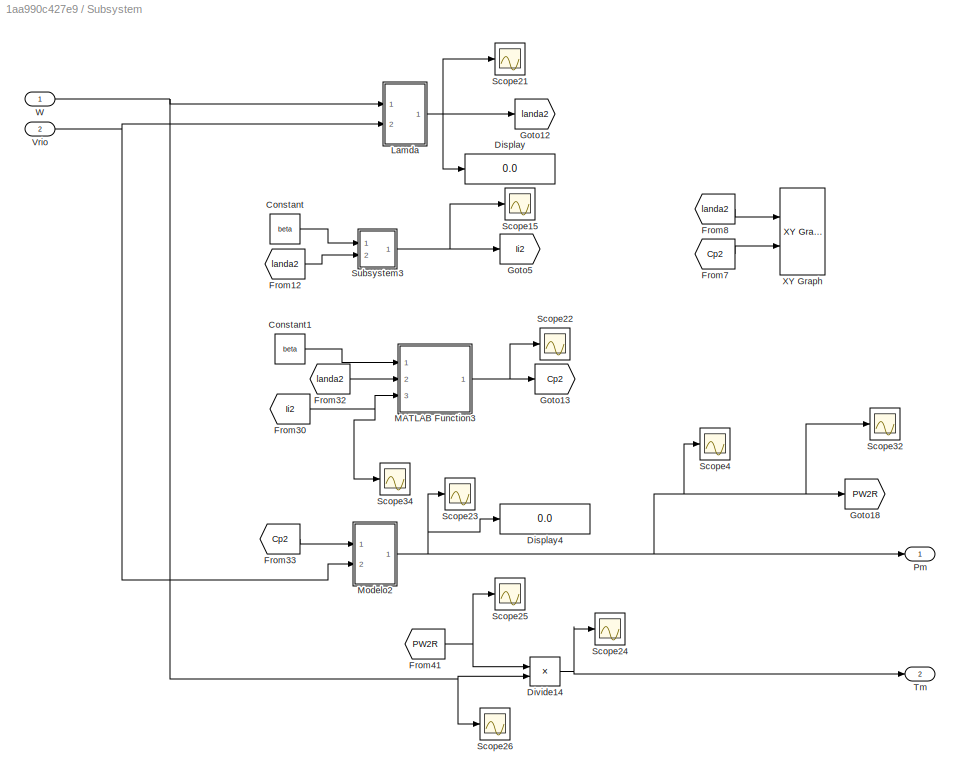
BLOCK [SubSystem] Subsystem
  Ports = [2, 2]
  RequestExecContextInheritance = off
  Variant = off
BLOCK [Constant] Subsystem/Constant
  Value = beta
BLOCK [Constant] Subsystem/Constant1
  Value = beta
BLOCK [Display] Subsystem/Display
  Decimation = 1
  Ports = [1]
BLOCK [Display] Subsystem/Display4
  Decimation = 1
  Ports = [1]
BLOCK [Product] Subsystem/Divide14
  InputSameDT = off
  Inputs = */
  OutDataTypeStr = Inherit: Inherit via internal rule
  Ports = [2, 1]
  RndMeth = Floor
  SaturateOnIntegerOverflow = off
BLOCK [From] Subsystem/From12
  GotoTag = landa2
BLOCK [From] Subsystem/From30
  GotoTag = Ii2
BLOCK [From] Subsystem/From32
  GotoTag = landa2
BLOCK [From] Subsystem/From33
  GotoTag = Cp2
BLOCK [From] Subsystem/From41
  GotoTag = PW2R
BLOCK [From] Subsystem/From7
  Commented = on
  GotoTag = Cp2
BLOCK [From] Subsystem/From8
  Commented = on
  GotoTag = landa2
BLOCK [Goto] Subsystem/Goto12
  GotoTag = landa2
BLOCK [Goto] Subsystem/Goto13
  GotoTag = Cp2
BLOCK [Goto] Subsystem/Goto18
  GotoTag = PW2R
BLOCK [Goto] Subsystem/Goto5
  GotoTag = Ii2
BLOCK [SubSystem] Subsystem/Lamda
  Ports = [2, 1]
  RequestExecContextInheritance = off
  Variant = off
BLOCK [Constant] Subsystem/Lamda/Constant4
  Value = r
BLOCK [Product] Subsystem/Lamda/Divide12
  InputSameDT = off
  Inputs = **
  OutDataTypeStr = Inherit: Inherit via internal rule
  Ports = [2, 1]
  RndMeth = Floor
  SaturateOnIntegerOverflow = off
BLOCK [Product] Subsystem/Lamda/Divide7
  InputSameDT = off
  Inputs = */
  OutDataTypeStr = Inherit: Inherit via internal rule
  Ports = [2, 1]
  RndMeth = Floor
  SaturateOnIntegerOverflow = off
BLOCK [Inport] Subsystem/Lamda/In1
  IconDisplay = Port number
BLOCK [Inport] Subsystem/Lamda/In2
  IconDisplay = Port number
  Port = 2
BLOCK [Outport] Subsystem/Lamda/Out1
  IconDisplay = Port number
BLOCK [Scope] Subsystem/Lamda/Scope35
  NumInputPorts = 1
  Ports = [1]
  ScopeSpecificationString = C++SS(StrPVP('Open','off'),StrPVP('TimeRange','auto'),StrPVP('TickLabels','OneTimeTick'),StrPVP('ShowLegends','off'),StrPVP('LimitDataPoints','off'),StrPVP('MaxDataPoints','5000'),StrPVP('SaveToWorkspace','off'),StrPVP('SaveName','ScopeData3'),StrPVP('YMin','5.6875'),StrPVP('YMax','48.8125'),StrPVP('BlockParamSampleInput','off'),StrPVP('BlockParamSampleTime','-1'),StrPVP('ZoomMode','on'),StrPVP('G...<+578ch>
BLOCK [Scope] Subsystem/Lamda/Scope36
  NumInputPorts = 1
  Ports = [1]
  ScopeSpecificationString = C++SS(StrPVP('Open','off'),StrPVP('TimeRange','auto'),StrPVP('TickLabels','OneTimeTick'),StrPVP('ShowLegends','off'),StrPVP('LimitDataPoints','off'),StrPVP('MaxDataPoints','5000'),StrPVP('SaveToWorkspace','off'),StrPVP('SaveName','ScopeData4'),StrPVP('YMin','0.4'),StrPVP('YMax','0.6'),StrPVP('BlockParamSampleInput','off'),StrPVP('BlockParamSampleTime','-1'),StrPVP('ZoomMode','on'),StrPVP('Grid','o...<+571ch>
BLOCK [Scope] Subsystem/Lamda/Scope37
  NumInputPorts = 1
  Ports = [1]
  ScopeSpecificationString = C++SS(StrPVP('Open','off'),StrPVP('TimeRange','auto'),StrPVP('TickLabels','OneTimeTick'),StrPVP('ShowLegends','off'),StrPVP('LimitDataPoints','off'),StrPVP('MaxDataPoints','5000'),StrPVP('SaveToWorkspace','off'),StrPVP('SaveName','ScopeData5'),StrPVP('YMin','2.60111'),StrPVP('YMax','26.59001'),StrPVP('BlockParamSampleInput','off'),StrPVP('BlockParamSampleTime','-1'),StrPVP('ZoomMode','on'),StrPVP(...<+580ch>
BLOCK [Scope] Subsystem/Lamda/Scope38
  NumInputPorts = 1
  Ports = [1]
  ScopeSpecificationString = C++SS(StrPVP('Open','off'),StrPVP('TimeRange','auto'),StrPVP('TickLabels','OneTimeTick'),StrPVP('ShowLegends','off'),StrPVP('LimitDataPoints','off'),StrPVP('MaxDataPoints','5000'),StrPVP('SaveToWorkspace','off'),StrPVP('SaveName','ScopeData6'),StrPVP('YMin','1.9'),StrPVP('YMax','2.9'),StrPVP('BlockParamSampleInput','off'),StrPVP('BlockParamSampleTime','-1'),StrPVP('ZoomMode','on'),StrPVP('Grid','o...<+571ch>
BLOCK [SubSystem] Subsystem/MATLAB Function3
  ErrorFcn = Stateflow.Translate.translate
  PermitHierarchicalResolution = ExplicitOnly
  Ports = [3, 1]
  RequestExecContextInheritance = off
  SFBlockType = MATLAB Function
  TreatAsAtomicUnit = on
  Variant = off
BLOCK [Demux] Subsystem/MATLAB Function3/ Demux 
  Outputs = 1
  Ports = [1, 1]
BLOCK [S-Function] Subsystem/MATLAB Function3/ SFunction 
  EnableBusSupport = on
  FunctionName = sf_sfun
  PortCounts = [3 2]
  Ports = [3, 2]
  SFcnIsStateOwnerBlock = off
  SFunctionDeploymentMode = off
  Tag = Stateflow S-Function MODELODETURBINADERIOV6 2
BLOCK [Terminator] Subsystem/MATLAB Function3/ Terminator 
BLOCK [Inport] Subsystem/MATLAB Function3/Ii
  IconDisplay = Port number
  Port = 3
BLOCK [Inport] Subsystem/MATLAB Function3/beta
  IconDisplay = Port number
BLOCK [Inport] Subsystem/MATLAB Function3/landa
  IconDisplay = Port number
  Port = 2
BLOCK [Outport] Subsystem/MATLAB Function3/y
  IconDisplay = Port number
BLOCK [SubSystem] Subsystem/Modelo2
  Ports = [2, 1]
  RequestExecContextInheritance = off
  Variant = off
BLOCK [Constant] Subsystem/Modelo2/A1
  Value = A
BLOCK [Constant] Subsystem/Modelo2/Constant4
  Value = 3
BLOCK [Constant] Subsystem/Modelo2/D1
  Value = den
BLOCK [Product] Subsystem/Modelo2/Divide13
  InputSameDT = off
  Inputs = ****
  OutDataTypeStr = Inherit: Inherit via internal rule
  Ports = [4, 1]
BLOCK [Gain] Subsystem/Modelo2/Gain11
  Gain = 0.5
  OutDataTypeStr = Inherit: Inherit via internal rule
  ParamDataTypeStr = Inherit: Inherit via internal rule
  SaturateOnIntegerOverflow = off
BLOCK [Inport] Subsystem/Modelo2/In1
  IconDisplay = Port number
BLOCK [Inport] Subsystem/Modelo2/In2
  IconDisplay = Port number
  Port = 2
BLOCK [Math] Subsystem/Modelo2/Math Function6
  Operator = pow
  Ports = [2, 1]
BLOCK [Outport] Subsystem/Modelo2/Out1
  IconDisplay = Port number
BLOCK [Outport] Subsystem/Pm
  IconDisplay = Port number
BLOCK [Scope] Subsystem/Scope15
  NumInputPorts = 1
  Ports = [1]
  ScopeSpecificationString = C++SS(StrPVP('Open','off'),StrPVP('TimeRange','auto'),StrPVP('TickLabels','OneTimeTick'),StrPVP('ShowLegends','off'),StrPVP('LimitDataPoints','off'),StrPVP('MaxDataPoints','5000'),StrPVP('SaveToWorkspace','off'),StrPVP('SaveName','ScopeData2'),StrPVP('YMin','-0.62327'),StrPVP('YMax','24.65706'),StrPVP('BlockParamSampleInput','off'),StrPVP('BlockParamSampleTime','-1'),StrPVP('ZoomMode','on'),StrPVP...<+582ch>
BLOCK [Scope] Subsystem/Scope21
  NumInputPorts = 1
  Ports = [1]
  ScopeSpecificationString = C++SS(StrPVP('Open','off'),StrPVP('TimeRange','auto'),StrPVP('TickLabels','OneTimeTick'),StrPVP('ShowLegends','off'),StrPVP('LimitDataPoints','off'),StrPVP('MaxDataPoints','5000'),StrPVP('SaveToWorkspace','off'),StrPVP('SaveName','ScopeData5'),StrPVP('YMin','-0.41206'),StrPVP('YMax','21.56565'),StrPVP('BlockParamSampleInput','off'),StrPVP('BlockParamSampleTime','-1'),StrPVP('ZoomMode','on'),StrPVP...<+581ch>
BLOCK [Scope] Subsystem/Scope22
  NumInputPorts = 1
  Ports = [1]
  ScopeSpecificationString = C++SS(StrPVP('Open','off'),StrPVP('TimeRange','auto'),StrPVP('TickLabels','OneTimeTick'),StrPVP('ShowLegends','off'),StrPVP('LimitDataPoints','off'),StrPVP('MaxDataPoints','5000'),StrPVP('SaveToWorkspace','off'),StrPVP('SaveName','ScopeData6'),StrPVP('YMin','-0.04579'),StrPVP('YMax','0.53827'),StrPVP('BlockParamSampleInput','off'),StrPVP('BlockParamSampleTime','-1'),StrPVP('ZoomMode','on'),StrPVP(...<+580ch>
BLOCK [Scope] Subsystem/Scope23
  NumInputPorts = 1
  Ports = [1]
  ScopeSpecificationString = C++SS(StrPVP('Open','off'),StrPVP('TimeRange','auto'),StrPVP('TickLabels','OneTimeTick'),StrPVP('ShowLegends','off'),StrPVP('LimitDataPoints','off'),StrPVP('MaxDataPoints','5000'),StrPVP('SaveToWorkspace','off'),StrPVP('SaveName','ScopeData7'),StrPVP('YMin','-282.63009'),StrPVP('YMax','3303.97582'),StrPVP('BlockParamSampleInput','off'),StrPVP('BlockParamSampleTime','-1'),StrPVP('ZoomMode','on'),St...<+490ch>
BLOCK [Scope] Subsystem/Scope24
  NumInputPorts = 1
  Ports = [1]
  ScopeSpecificationString = C++SS(StrPVP('Open','off'),StrPVP('TimeRange','auto'),StrPVP('TickLabels','OneTimeTick'),StrPVP('ShowLegends','off'),StrPVP('LimitDataPoints','off'),StrPVP('MaxDataPoints','5000'),StrPVP('SaveToWorkspace','off'),StrPVP('SaveName','ScopeData8'),StrPVP('YMin','-26.23799'),StrPVP('YMax','66.32037'),StrPVP('BlockParamSampleInput','off'),StrPVP('BlockParamSampleTime','-1'),StrPVP('ZoomMode','on'),StrPV...<+582ch>
BLOCK [Scope] Subsystem/Scope25
  NumInputPorts = 1
  Ports = [1]
  ScopeSpecificationString = C++SS(StrPVP('Open','off'),StrPVP('TimeRange','auto'),StrPVP('TickLabels','OneTimeTick'),StrPVP('ShowLegends','off'),StrPVP('LimitDataPoints','off'),StrPVP('MaxDataPoints','5000'),StrPVP('SaveToWorkspace','off'),StrPVP('SaveName','ScopeData9'),StrPVP('YMin','-1861.59136'),StrPVP('YMax','3549.53133'),StrPVP('BlockParamSampleInput','off'),StrPVP('BlockParamSampleTime','-1'),StrPVP('ZoomMode','on'),S...<+586ch>
BLOCK [Scope] Subsystem/Scope26
  NumInputPorts = 1
  Ports = [1]
  ScopeSpecificationString = C++SS(StrPVP('Open','off'),StrPVP('TimeRange','auto'),StrPVP('TickLabels','OneTimeTick'),StrPVP('ShowLegends','off'),StrPVP('LimitDataPoints','off'),StrPVP('MaxDataPoints','5000'),StrPVP('SaveToWorkspace','off'),StrPVP('SaveName','ScopeData10'),StrPVP('YMin','5.6875'),StrPVP('YMax','48.8125'),StrPVP('BlockParamSampleInput','off'),StrPVP('BlockParamSampleTime','-1'),StrPVP('ZoomMode','on'),StrPVP('...<+579ch>
BLOCK [Scope] Subsystem/Scope32
  NumInputPorts = 1
  Ports = [1]
  ScopeSpecificationString = C++SS(StrPVP('Open','off'),StrPVP('TimeRange','auto'),StrPVP('TickLabels','OneTimeTick'),StrPVP('ShowLegends','off'),StrPVP('LimitDataPoints','off'),StrPVP('MaxDataPoints','5000'),StrPVP('SaveToWorkspace','off'),StrPVP('SaveName','ScopeData16'),StrPVP('YMin','-520.82156'),StrPVP('YMax','4687.39404'),StrPVP('BlockParamSampleInput','off'),StrPVP('BlockParamSampleTime','-1'),StrPVP('ZoomMode','on'),S...<+586ch>
BLOCK [Scope] Subsystem/Scope34
  NumInputPorts = 1
  Ports = [1]
  ScopeSpecificationString = C++SS(StrPVP('Open','off'),StrPVP('TimeRange','auto'),StrPVP('TickLabels','OneTimeTick'),StrPVP('ShowLegends','off'),StrPVP('LimitDataPoints','off'),StrPVP('MaxDataPoints','5000'),StrPVP('SaveToWorkspace','off'),StrPVP('SaveName','ScopeData2'),StrPVP('YMin','-1.41755'),StrPVP('YMax','13.56022'),StrPVP('BlockParamSampleInput','off'),StrPVP('BlockParamSampleTime','-1'),StrPVP('ZoomMode','on'),StrPVP...<+581ch>
BLOCK [Scope] Subsystem/Scope4
  NumInputPorts = 1
  Ports = [1]
  ScopeSpecificationString = C++SS(StrPVP('Open','off'),StrPVP('TimeRange','auto'),StrPVP('TickLabels','OneTimeTick'),StrPVP('ShowLegends','off'),StrPVP('LimitDataPoints','off'),StrPVP('MaxDataPoints','5000'),StrPVP('SaveToWorkspace','off'),StrPVP('SaveName','ScopeData3'),StrPVP('YMin','-424.53714'),StrPVP('YMax','4639.64684'),StrPVP('BlockParamSampleInput','off'),StrPVP('BlockParamSampleTime','-1'),StrPVP('ZoomMode','on'),St...<+586ch>
BLOCK [SubSystem] Subsystem/Subsystem3
  Ports = [2, 1]
  RequestExecContextInheritance = off
  Variant = off
BLOCK [Inport] Subsystem/Subsystem3/In1
  IconDisplay = Port number
BLOCK [Inport] Subsystem/Subsystem3/In2
  IconDisplay = Port number
  Port = 2
BLOCK [Outport] Subsystem/Subsystem3/Out1
  IconDisplay = Port number
BLOCK [SubSystem] Subsystem/Subsystem3/lamdai
  ErrorFcn = Stateflow.Translate.translate
  PermitHierarchicalResolution = ExplicitOnly
  Ports = [2, 1]
  RequestExecContextInheritance = off
  SFBlockType = MATLAB Function
  TreatAsAtomicUnit = on
  Variant = off
BLOCK [Demux] Subsystem/Subsystem3/lamdai/ Demux 
  Outputs = 1
  Ports = [1, 1]
BLOCK [S-Function] Subsystem/Subsystem3/lamdai/ SFunction 
  EnableBusSupport = on
  FunctionName = sf_sfun
  PortCounts = [2 2]
  Ports = [2, 2]
  SFcnIsStateOwnerBlock = off
  SFunctionDeploymentMode = off
  Tag = Stateflow S-Function MODELODETURBINADERIOV6 3
BLOCK [Terminator] Subsystem/Subsystem3/lamdai/ Terminator 
BLOCK [Outport] Subsystem/Subsystem3/lamdai/Ii
  IconDisplay = Port number
BLOCK [Inport] Subsystem/Subsystem3/lamdai/beta
  IconDisplay = Port number
BLOCK [Inport] Subsystem/Subsystem3/lamdai/landa
  IconDisplay = Port number
  Port = 2
BLOCK [Outport] Subsystem/Tm
  IconDisplay = Port number
  Port = 2
BLOCK [Inport] Subsystem/Vrio
  IconDisplay = Port number
  Port = 2
BLOCK [Inport] Subsystem/W
  IconDisplay = Port number
BLOCK [Reference] Subsystem/XY Graph  REF=simulink/Sinks/XY Graph
  Commented = on
  Ports = [2]
  SourceBlock = simulink/Sinks/XY Graph
  SourceProductBaseCode = SL
  SourceProductName = Simulink
  SourceType = XY scope.
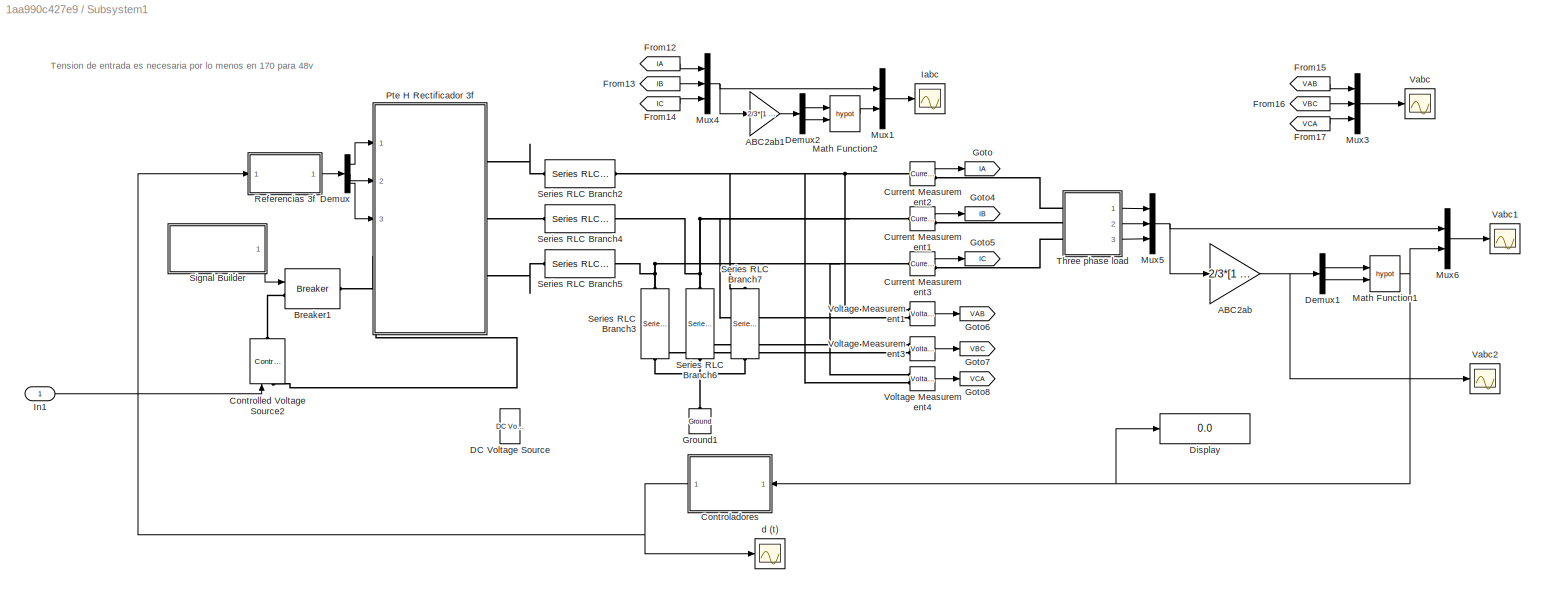
BLOCK [SubSystem] Subsystem1
  Ports = [1]
  RequestExecContextInheritance = off
  Variant = off
BLOCK [Gain] Subsystem1/ABC2ab
  Gain = 2/3*[1 -0.5 -0.5;0 sqrt(3)/2 -sqrt(3)/2]
  Multiplication = Matrix(K*u)
BLOCK [Gain] Subsystem1/ABC2ab1
  Gain = 2/3*[1 -0.5 -0.5;0 sqrt(3)/2 -sqrt(3)/2]
  Multiplication = Matrix(K*u)
BLOCK [Reference] Subsystem1/Breaker1  REF=powerlib/Elements/Breaker
  Ports = [1, 0, 0, 0, 0, 1, 1]
  SourceBlock = powerlib/Elements/Breaker
  SourceProductBaseCode = PS
  SourceProductName = Simscape Power Systems
  SourceType = Breaker
BLOCK [SubSystem] Subsystem1/Controladores
  Ports = [1, 1]
  RequestExecContextInheritance = off
  Variant = off
BLOCK [Sum] Subsystem1/Controladores/Add
  IconShape = round
  InputSameDT = off
  Inputs = |+-
  OutDataTypeStr = Inherit: Inherit via internal rule
  Ports = [2, 1]
  SaturateOnIntegerOverflow = off
BLOCK [Sum] Subsystem1/Controladores/Add1
  IconShape = round
  InputSameDT = off
  Inputs = ++|
  OutDataTypeStr = Inherit: Inherit via internal rule
  Ports = [2, 1]
  SaturateOnIntegerOverflow = off
BLOCK [Sum] Subsystem1/Controladores/Add2
  IconShape = round
  InputSameDT = off
  Inputs = |+-
  OutDataTypeStr = Inherit: Inherit via internal rule
  Ports = [2, 1]
  SaturateOnIntegerOverflow = off
BLOCK [DeadZone] Subsystem1/Controladores/Dead Zone
  LowerValue = -1
  UpperValue = 1
BLOCK [Gain] Subsystem1/Controladores/Derivative Divisor
  Gain = 1/48
BLOCK [Gain] Subsystem1/Controladores/Derivative Divisor1
  Gain = K1Vo
BLOCK [Gain] Subsystem1/Controladores/Derivative Divisor2
  Gain = K2Vo
BLOCK [Gain] Subsystem1/Controladores/Derivative Divisor3
  Gain = 4
BLOCK [Integrator] Subsystem1/Controladores/Integrator
  Ports = [1, 1]
BLOCK [Math] Subsystem1/Controladores/Math Function1
  Operator = square
  Ports = [1, 1]
BLOCK [Saturate] Subsystem1/Controladores/Saturation
  InputPortMap = u0
  LowerLimit = -1
  Ports = [1, 1]
  UpperLimit = 1
BLOCK [SubSystem] Subsystem1/Controladores/Signal Builder
  ClipboardFcn = sigbuilder_block('clipboard');
  CloseFcn = sigbuilder_block('close');
  ContinueFcn = sigbuilder_block('continue')
  CopyFcn = sigbuilder_block('copy');
  DeleteFcn = sigbuilder_block('delete');
  LoadFcn = sigbuilder_block('load');
  MaskHideContents = on
  ModelCloseFcn = sigbuilder_block('modelClose');
  NameChangeFcn = sigbuilder_block('namechange');
  OpenFcn = sigbuilder_block('open',[6 24 765 492 ]);
  PauseFcn = sigbuilder_block('pause')
  Ports = [0, 1]
  PreSaveFcn = sigbuilder_block('preSave');
  RequestExecContextInheritance = off
  StartFcn = sigbuilder_block('start');
  StopFcn = sigbuilder_block('stop');
  Tag = STV Subsys
  Variant = off
BLOCK [Demux] Subsystem1/Controladores/Signal Builder/Demux
  Outputs = 1
  Ports = [1, 1]
  Tag = STV Demux
BLOCK [FromWorkspace] Subsystem1/Controladores/Signal Builder/FromWs
  SampleTime = 0
  Tag = STV FromWs
  VariableName = tuvar
  ZeroCross = on
BLOCK [Outport] Subsystem1/Controladores/Signal Builder/Signal 1
  IconDisplay = Port number
  Tag = STV Outport
BLOCK [Inport] Subsystem1/Controladores/abc
  IconDisplay = Port number
BLOCK [Outport] Subsystem1/Controladores/cd
  IconDisplay = Port number
BLOCK [Reference] Subsystem1/Controlled Voltage Source2  REF=powerlib/Electrical
Sources/Controlled Voltage Source
  Ports = [1, 0, 0, 0, 0, 1, 1]
  SourceBlock = powerlib/Electrical\nSources/Controlled Voltage Source
  SourceProductBaseCode = PS
  SourceProductName = Simscape Power Systems
  SourceType = Controlled Voltage Source
BLOCK [Reference] Subsystem1/Current Measurement1  REF=powerlib/Measurements/Current Measurement
  Ports = [0, 1, 0, 0, 0, 1, 1]
  SourceBlock = powerlib/Measurements/Current Measurement
  SourceProductBaseCode = PS
  SourceProductName = Simscape Power Systems
  SourceType = Current Measurement
BLOCK [Reference] Subsystem1/Current Measurement2  REF=powerlib/Measurements/Current Measurement
  Ports = [0, 1, 0, 0, 0, 1, 1]
  SourceBlock = powerlib/Measurements/Current Measurement
  SourceProductBaseCode = PS
  SourceProductName = Simscape Power Systems
  SourceType = Current Measurement
BLOCK [Reference] Subsystem1/Current Measurement3  REF=powerlib/Measurements/Current Measurement
  Ports = [0, 1, 0, 0, 0, 1, 1]
  SourceBlock = powerlib/Measurements/Current Measurement
  SourceProductBaseCode = PS
  SourceProductName = Simscape Power Systems
  SourceType = Current Measurement
BLOCK [Reference] Subsystem1/DC Voltage Source  REF=powerlib/Electrical
Sources/DC Voltage Source
  Ports = [0, 0, 0, 0, 0, 1, 1]
  SourceBlock = powerlib/Electrical\nSources/DC Voltage Source
  SourceProductBaseCode = PS
  SourceProductName = Simscape Power Systems
  SourceType = DC Voltage Source
BLOCK [Demux] Subsystem1/Demux
  DisplayOption = bar
  Outputs = 3
  Ports = [1, 3]
BLOCK [Demux] Subsystem1/Demux1
  Outputs = 2
  Ports = [1, 2]
BLOCK [Demux] Subsystem1/Demux2
  Outputs = 2
  Ports = [1, 2]
BLOCK [Display] Subsystem1/Display
  Decimation = 1
  Ports = [1]
BLOCK [From] Subsystem1/From12
  CloseFcn = tagdialog Close
  GotoTag = IA
BLOCK [From] Subsystem1/From13
  CloseFcn = tagdialog Close
  GotoTag = IB
BLOCK [From] Subsystem1/From14
  CloseFcn = tagdialog Close
  GotoTag = IC
BLOCK [From] Subsystem1/From15
  CloseFcn = tagdialog Close
  GotoTag = VAB
BLOCK [From] Subsystem1/From16
  CloseFcn = tagdialog Close
  GotoTag = VBC
BLOCK [From] Subsystem1/From17
  CloseFcn = tagdialog Close
  GotoTag = VCA
BLOCK [Goto] Subsystem1/Goto
  GotoTag = IA
BLOCK [Goto] Subsystem1/Goto4
  GotoTag = IB
BLOCK [Goto] Subsystem1/Goto5
  GotoTag = IC
BLOCK [Goto] Subsystem1/Goto6
  GotoTag = VAB
BLOCK [Goto] Subsystem1/Goto7
  GotoTag = VBC
BLOCK [Goto] Subsystem1/Goto8
  GotoTag = VCA
BLOCK [Reference] Subsystem1/Ground1  REF=powerlib/Elements/Ground
  Ports = [0, 0, 0, 0, 0, 1]
  SourceBlock = powerlib/Elements/Ground
  SourceProductBaseCode = PS
  SourceProductName = Simscape Power Systems
  SourceType = Ground
BLOCK [Scope] Subsystem1/Iabc
  NumInputPorts = 1
  Ports = [1]
  ScopeSpecificationString = C++SS(StrPVP('Open','off'),StrPVP('TimeRange','0.17'),StrPVP('TickLabels','OneTimeTick'),StrPVP('ShowLegends','off'),StrPVP('LimitDataPoints','off'),StrPVP('MaxDataPoints','5000'),StrPVP('SaveToWorkspace','off'),StrPVP('SaveName','ScopeData2'),StrPVP('YMin','5.26033'),StrPVP('YMax','14.16085'),StrPVP('BlockParamSampleInput','off'),StrPVP('BlockParamSampleTime','-1'),StrPVP('ZoomMode','on'),StrPVP(...<+565ch>
BLOCK [Inport] Subsystem1/In1
  IconDisplay = Port number
BLOCK [Math] Subsystem1/Math Function1
  Operator = hypot
  Ports = [2, 1]
BLOCK [Math] Subsystem1/Math Function2
  Operator = hypot
  Ports = [2, 1]
BLOCK [Mux] Subsystem1/Mux1
  DisplayOption = bar
  Inputs = 2
  Ports = [2, 1]
BLOCK [Mux] Subsystem1/Mux3
  DisplayOption = bar
  Inputs = 3
  Ports = [3, 1]
BLOCK [Mux] Subsystem1/Mux4
  DisplayOption = bar
  Inputs = 3
  Ports = [3, 1]
BLOCK [Mux] Subsystem1/Mux5
  DisplayOption = bar
  Inputs = 3
  Ports = [3, 1]
BLOCK [Mux] Subsystem1/Mux6
  DisplayOption = bar
  Inputs = 2
  Ports = [2, 1]
BLOCK [SubSystem] Subsystem1/Pte H Rectificador 3f
  Ports = [3, 0, 0, 0, 0, 2, 3]
  RequestExecContextInheritance = off
  Variant = off
BLOCK [PMIOPort] Subsystem1/Pte H Rectificador 3f/A
  Port = 1
  Side = Right
BLOCK [PMIOPort] Subsystem1/Pte H Rectificador 3f/B
  Port = 2
  Side = Right
BLOCK [PMIOPort] Subsystem1/Pte H Rectificador 3f/C
  Port = 3
  Side = Right
BLOCK [DataTypeConversion] Subsystem1/Pte H Rectificador 3f/Data Type Conversion1
  RndMeth = Floor
  SaturateOnIntegerOverflow = off
BLOCK [DataTypeConversion] Subsystem1/Pte H Rectificador 3f/Data Type Conversion2
  RndMeth = Floor
  SaturateOnIntegerOverflow = off
BLOCK [DataTypeConversion] Subsystem1/Pte H Rectificador 3f/Data Type Conversion3
  RndMeth = Floor
  SaturateOnIntegerOverflow = off
BLOCK [DataTypeConversion] Subsystem1/Pte H Rectificador 3f/Data Type Conversion4
  RndMeth = Floor
  SaturateOnIntegerOverflow = off
BLOCK [DataTypeConversion] Subsystem1/Pte H Rectificador 3f/Data Type Conversion5
  RndMeth = Floor
  SaturateOnIntegerOverflow = off
BLOCK [DataTypeConversion] Subsystem1/Pte H Rectificador 3f/Data Type Conversion6
  RndMeth = Floor
  SaturateOnIntegerOverflow = off
BLOCK [Reference] Subsystem1/Pte H Rectificador 3f/IGBT//Diode1  REF=powerlib/Power
Electronics/IGBT//Diode
  Ports = [1, 0, 0, 0, 0, 1, 1]
  SourceBlock = powerlib/Power\nElectronics/IGBT//Diode
  SourceProductBaseCode = PS
  SourceProductName = Simscape Power Systems
  SourceType = IGBT/Diode
BLOCK [Reference] Subsystem1/Pte H Rectificador 3f/IGBT//Diode2  REF=powerlib/Power
Electronics/IGBT//Diode
  Ports = [1, 0, 0, 0, 0, 1, 1]
  SourceBlock = powerlib/Power\nElectronics/IGBT//Diode
  SourceProductBaseCode = PS
  SourceProductName = Simscape Power Systems
  SourceType = IGBT/Diode
BLOCK [Reference] Subsystem1/Pte H Rectificador 3f/IGBT//Diode3  REF=powerlib/Power
Electronics/IGBT//Diode
  Ports = [1, 0, 0, 0, 0, 1, 1]
  SourceBlock = powerlib/Power\nElectronics/IGBT//Diode
  SourceProductBaseCode = PS
  SourceProductName = Simscape Power Systems
  SourceType = IGBT/Diode
BLOCK [Reference] Subsystem1/Pte H Rectificador 3f/IGBT//Diode4  REF=powerlib/Power
Electronics/IGBT//Diode
  Ports = [1, 0, 0, 0, 0, 1, 1]
  SourceBlock = powerlib/Power\nElectronics/IGBT//Diode
  SourceProductBaseCode = PS
  SourceProductName = Simscape Power Systems
  SourceType = IGBT/Diode
BLOCK [Reference] Subsystem1/Pte H Rectificador 3f/IGBT//Diode5  REF=powerlib/Power
Electronics/IGBT//Diode
  Ports = [1, 0, 0, 0, 0, 1, 1]
  SourceBlock = powerlib/Power\nElectronics/IGBT//Diode
  SourceProductBaseCode = PS
  SourceProductName = Simscape Power Systems
  SourceType = IGBT/Diode
BLOCK [Reference] Subsystem1/Pte H Rectificador 3f/IGBT//Diode6  REF=powerlib/Power
Electronics/IGBT//Diode
  Ports = [1, 0, 0, 0, 0, 1, 1]
  SourceBlock = powerlib/Power\nElectronics/IGBT//Diode
  SourceProductBaseCode = PS
  SourceProductName = Simscape Power Systems
  SourceType = IGBT/Diode
BLOCK [Inport] Subsystem1/Pte H Rectificador 3f/L1
  IconDisplay = Port number
BLOCK [Inport] Subsystem1/Pte H Rectificador 3f/L2
  IconDisplay = Port number
  Port = 2
BLOCK [Inport] Subsystem1/Pte H Rectificador 3f/L3
  IconDisplay = Port number
  Port = 3
BLOCK [Logic] Subsystem1/Pte H Rectificador 3f/Logical Operator
  AllPortsSameDT = off
  Operator = NOT
  OutDataTypeStr = boolean
  Ports = [1, 1]
BLOCK [Logic] Subsystem1/Pte H Rectificador 3f/Logical Operator1
  AllPortsSameDT = off
  Operator = NOT
  OutDataTypeStr = boolean
  Ports = [1, 1]
BLOCK [Logic] Subsystem1/Pte H Rectificador 3f/Logical Operator2
  AllPortsSameDT = off
  Operator = NOT
  OutDataTypeStr = boolean
  Ports = [1, 1]
BLOCK [PMIOPort] Subsystem1/Pte H Rectificador 3f/V+
  Port = 4
  Side = Left
BLOCK [PMIOPort] Subsystem1/Pte H Rectificador 3f/V-
  Port = 5
  Side = Left
BLOCK [SubSystem] Subsystem1/Referencias 3f
  Ports = [1, 1]
  RequestExecContextInheritance = off
  Variant = off
BLOCK [Sin] Subsystem1/Referencias 3f/AR
  Frequency = Fr*2*pi
  Ports = [0, 1]
  SampleTime = 0
BLOCK [Sin] Subsystem1/Referencias 3f/BR
  Frequency = Fr*2*pi
  Phase = -2*pi/3
  Ports = [0, 1]
  SampleTime = 0
BLOCK [Sin] Subsystem1/Referencias 3f/CR
  Frequency = Fr*2*pi
  Phase = 2*pi/3
  Ports = [0, 1]
  SampleTime = 0
BLOCK [Inport] Subsystem1/Referencias 3f/D
  IconDisplay = Port number
BLOCK [Mux] Subsystem1/Referencias 3f/Mux7
  DisplayOption = bar
  Inputs = 3
  Ports = [3, 1]
BLOCK [Product] Subsystem1/Referencias 3f/Product3
  InputSameDT = off
  OutDataTypeStr = double
  Ports = [2, 1]
  SaturateOnIntegerOverflow = off
BLOCK [Outport] Subsystem1/Referencias 3f/Ref
  IconDisplay = Port number
BLOCK [RelationalOperator] Subsystem1/Referencias 3f/Relational Operator1
  InputSameDT = off
  Operator = >
  OutDataTypeStr = boolean
  Ports = [2, 1]
BLOCK [Reference] Subsystem1/Referencias 3f/Repeating Sequence  REF=simulink/Sources/Repeating
Sequence
  Ports = [0, 1]
  SourceBlock = simulink/Sources/Repeating\nSequence
  SourceProductBaseCode = SL
  SourceProductName = Simulink
  SourceType = Repeating table
BLOCK [Reference] Subsystem1/Series RLC Branch2  REF=powerlib/Elements/Series RLC Branch
  Ports = [0, 0, 0, 0, 0, 1, 1]
  SourceBlock = powerlib/Elements/Series RLC Branch
  SourceProductBaseCode = PS
  SourceProductName = Simscape Power Systems
  SourceType = Series RLC Branch
BLOCK [Reference] Subsystem1/Series RLC Branch3  REF=powerlib/Elements/Series RLC Branch
  Ports = [0, 0, 0, 0, 0, 1, 1]
  SourceBlock = powerlib/Elements/Series RLC Branch
  SourceProductBaseCode = PS
  SourceProductName = Simscape Power Systems
  SourceType = Series RLC Branch
BLOCK [Reference] Subsystem1/Series RLC Branch4  REF=powerlib/Elements/Series RLC Branch
  Ports = [0, 0, 0, 0, 0, 1, 1]
  SourceBlock = powerlib/Elements/Series RLC Branch
  SourceProductBaseCode = PS
  SourceProductName = Simscape Power Systems
  SourceType = Series RLC Branch
BLOCK [Reference] Subsystem1/Series RLC Branch5  REF=powerlib/Elements/Series RLC Branch
  Ports = [0, 0, 0, 0, 0, 1, 1]
  SourceBlock = powerlib/Elements/Series RLC Branch
  SourceProductBaseCode = PS
  SourceProductName = Simscape Power Systems
  SourceType = Series RLC Branch
BLOCK [Reference] Subsystem1/Series RLC Branch6  REF=powerlib/Elements/Series RLC Branch
  Ports = [0, 0, 0, 0, 0, 1, 1]
  SourceBlock = powerlib/Elements/Series RLC Branch
  SourceProductBaseCode = PS
  SourceProductName = Simscape Power Systems
  SourceType = Series RLC Branch
BLOCK [Reference] Subsystem1/Series RLC Branch7  REF=powerlib/Elements/Series RLC Branch
  Ports = [0, 0, 0, 0, 0, 1, 1]
  SourceBlock = powerlib/Elements/Series RLC Branch
  SourceProductBaseCode = PS
  SourceProductName = Simscape Power Systems
  SourceType = Series RLC Branch
BLOCK [SubSystem] Subsystem1/Signal Builder
  ClipboardFcn = sigbuilder_block('clipboard');
  CloseFcn = sigbuilder_block('close');
  ContinueFcn = sigbuilder_block('continue')
  CopyFcn = sigbuilder_block('copy');
  DeleteFcn = sigbuilder_block('delete');
  LoadFcn = sigbuilder_block('load');
  MaskHideContents = on
  ModelCloseFcn = sigbuilder_block('modelClose');
  NameChangeFcn = sigbuilder_block('namechange');
  OpenFcn = sigbuilder_block('open',[437.25 117 550.5 399 ]);
  PauseFcn = sigbuilder_block('pause')
  Ports = [0, 1]
  PreSaveFcn = sigbuilder_block('preSave');
  RequestExecContextInheritance = off
  StartFcn = sigbuilder_block('start');
  StopFcn = sigbuilder_block('stop');
  Tag = STV Subsys
  Variant = off
BLOCK [Demux] Subsystem1/Signal Builder/Demux
  Outputs = 1
  Ports = [1, 1]
  Tag = STV Demux
BLOCK [FromWorkspace] Subsystem1/Signal Builder/FromWs
  SampleTime = 0
  Tag = STV FromWs
  VariableName = tuvar
  ZeroCross = on
BLOCK [Outport] Subsystem1/Signal Builder/Signal 1
  IconDisplay = Port number
  Tag = STV Outport
BLOCK [SubSystem] Subsystem1/Three phase load
  Ports = [0, 3, 0, 0, 0, 3]
  RequestExecContextInheritance = off
  Variant = off
BLOCK [PMIOPort] Subsystem1/Three phase load/F1
  Port = 1
  Side = Left
BLOCK [PMIOPort] Subsystem1/Three phase load/F2
  Port = 2
  Side = Left
BLOCK [PMIOPort] Subsystem1/Three phase load/F3
  Port = 3
  Side = Left
BLOCK [Reference] Subsystem1/Three phase load/Series RLC Branch3  REF=powerlib/Elements/Series RLC Branch
  Ports = [0, 0, 0, 0, 0, 1, 1]
  SourceBlock = powerlib/Elements/Series RLC Branch
  SourceProductBaseCode = PS
  SourceProductName = Simscape Power Systems
  SourceType = Series RLC Branch
BLOCK [Reference] Subsystem1/Three phase load/Series RLC Branch4  REF=powerlib/Elements/Series RLC Branch
  Ports = [0, 0, 0, 0, 0, 1, 1]
  SourceBlock = powerlib/Elements/Series RLC Branch
  SourceProductBaseCode = PS
  SourceProductName = Simscape Power Systems
  SourceType = Series RLC Branch
BLOCK [Reference] Subsystem1/Three phase load/Series RLC Branch8  REF=powerlib/Elements/Series RLC Branch
  Ports = [0, 0, 0, 0, 0, 1, 1]
  SourceBlock = powerlib/Elements/Series RLC Branch
  SourceProductBaseCode = PS
  SourceProductName = Simscape Power Systems
  SourceType = Series RLC Branch
BLOCK [Outport] Subsystem1/Three phase load/Van
  IconDisplay = Port number
BLOCK [Outport] Subsystem1/Three phase load/Vbn
  IconDisplay = Port number
  Port = 2
BLOCK [Outport] Subsystem1/Three phase load/Vcn
  IconDisplay = Port number
  Port = 3
BLOCK [Reference] Subsystem1/Three phase load/Voltage Measurement1  REF=powerlib/Measurements/Voltage Measurement
  Ports = [0, 1, 0, 0, 0, 2]
  SourceBlock = powerlib/Measurements/Voltage Measurement
  SourceProductBaseCode = PS
  SourceProductName = Simscape Power Systems
  SourceType = Voltage Measurement
BLOCK [Reference] Subsystem1/Three phase load/Voltage Measurement2  REF=powerlib/Measurements/Voltage Measurement
  Ports = [0, 1, 0, 0, 0, 2]
  SourceBlock = powerlib/Measurements/Voltage Measurement
  SourceProductBaseCode = PS
  SourceProductName = Simscape Power Systems
  SourceType = Voltage Measurement
BLOCK [Reference] Subsystem1/Three phase load/Voltage Measurement3  REF=powerlib/Measurements/Voltage Measurement
  Ports = [0, 1, 0, 0, 0, 2]
  SourceBlock = powerlib/Measurements/Voltage Measurement
  SourceProductBaseCode = PS
  SourceProductName = Simscape Power Systems
  SourceType = Voltage Measurement
BLOCK [Scope] Subsystem1/Vabc
  NumInputPorts = 1
  Ports = [1]
  ScopeSpecificationString = C++SS(StrPVP('Open','off'),StrPVP('TimeRange','0.17'),StrPVP('TickLabels','OneTimeTick'),StrPVP('ShowLegends','off'),StrPVP('LimitDataPoints','off'),StrPVP('MaxDataPoints','5000'),StrPVP('SaveToWorkspace','off'),StrPVP('SaveName','ScopeData5'),StrPVP('YMin','-1789.94366'),StrPVP('YMax','1046.34021'),StrPVP('BlockParamSampleInput','off'),StrPVP('BlockParamSampleTime','-1'),StrPVP('ZoomMode','on'),S...<+574ch>
BLOCK [Scope] Subsystem1/Vabc1
  NumInputPorts = 1
  Ports = [1]
  ScopeSpecificationString = Simulink.scopes.TimeScopeBlockCfg('CurrentConfiguration', extmgr.ConfigurationSet(extmgr.Configuration('Core','General UI',true,'FigureColor',[0.156862745098039 0.156862745098039 0.156862745098039]),extmgr.Configuration('Core','Source UI',true),extmgr.Configuration('Sources','WiredSimulink',true,'DataLoggingVariableName','ScopeData3','DataLoggingSaveFormat','Structure','DataLoggingDecimation','D',...<+2858ch>
BLOCK [Scope] Subsystem1/Vabc2
  NumInputPorts = 1
  Ports = [1]
  ScopeSpecificationString = C++SS(StrPVP('Open','off'),StrPVP('TimeRange','0.17'),StrPVP('TickLabels','OneTimeTick'),StrPVP('ShowLegends','off'),StrPVP('LimitDataPoints','off'),StrPVP('MaxDataPoints','5000'),StrPVP('SaveToWorkspace','off'),StrPVP('SaveName','ScopeData4'),StrPVP('YMin','-200'),StrPVP('YMax','200'),StrPVP('BlockParamSampleInput','off'),StrPVP('BlockParamSampleTime','-1'),StrPVP('ZoomMode','on'),StrPVP('Grid','...<+558ch>
BLOCK [Reference] Subsystem1/Voltage Measurement1  REF=powerlib/Measurements/Voltage Measurement
  Ports = [0, 1, 0, 0, 0, 2]
  SourceBlock = powerlib/Measurements/Voltage Measurement
  SourceProductBaseCode = PS
  SourceProductName = Simscape Power Systems
  SourceType = Voltage Measurement
BLOCK [Reference] Subsystem1/Voltage Measurement3  REF=powerlib/Measurements/Voltage Measurement
  Ports = [0, 1, 0, 0, 0, 2]
  SourceBlock = powerlib/Measurements/Voltage Measurement
  SourceProductBaseCode = PS
  SourceProductName = Simscape Power Systems
  SourceType = Voltage Measurement
BLOCK [Reference] Subsystem1/Voltage Measurement4  REF=powerlib/Measurements/Voltage Measurement
  Ports = [0, 1, 0, 0, 0, 2]
  SourceBlock = powerlib/Measurements/Voltage Measurement
  SourceProductBaseCode = PS
  SourceProductName = Simscape Power Systems
  SourceType = Voltage Measurement
BLOCK [Scope] Subsystem1/d (t)
  NumInputPorts = 1
  Ports = [1]
  ScopeSpecificationString = C++SS(StrPVP('Open','off'),StrPVP('TimeRange','0.17'),StrPVP('TickLabels','OneTimeTick'),StrPVP('ShowLegends','off'),StrPVP('LimitDataPoints','off'),StrPVP('MaxDataPoints','5000'),StrPVP('SaveToWorkspace','off'),StrPVP('SaveName','ScopeData6'),StrPVP('YMin','0.4375'),StrPVP('YMax','1.0625'),StrPVP('BlockParamSampleInput','off'),StrPVP('BlockParamSampleTime','-1'),StrPVP('ZoomMode','on'),StrPVP('Gr...<+559ch>
BLOCK [SubSystem] Subsystem3
  Commented = on
  Ports = [2, 1]
  RequestExecContextInheritance = off
  Variant = off
BLOCK [Sum] Subsystem3/Add
  InputSameDT = off
  OutDataTypeStr = Inherit: Inherit via internal rule
  Ports = [2, 1]
  SaturateOnIntegerOverflow = off
BLOCK [Constant] Subsystem3/Constant1
  Value = Lambda
BLOCK [Constant] Subsystem3/Constant2
  Value = L_d
BLOCK [Constant] Subsystem3/Constant3
  Value = L_q
BLOCK [Gain] Subsystem3/Gain5
  Gain = P
  OutDataTypeStr = Inherit: Inherit via internal rule
  ParamDataTypeStr = Inherit: Inherit via internal rule
  SaturateOnIntegerOverflow = off
BLOCK [Gain] Subsystem3/Gain6
  Gain = 1.5
  OutDataTypeStr = Inherit: Inherit via internal rule
  ParamDataTypeStr = Inherit: Inherit via internal rule
  SaturateOnIntegerOverflow = off
BLOCK [Inport] Subsystem3/Id
  IconDisplay = Port number
  Port = 2
BLOCK [Inport] Subsystem3/Iq
  IconDisplay = Port number
BLOCK [Product] Subsystem3/Product
  InputSameDT = off
  OutDataTypeStr = Inherit: Inherit via internal rule
  Ports = [2, 1]
  RndMeth = Floor
  SaturateOnIntegerOverflow = off
BLOCK [Product] Subsystem3/Product1
  InputSameDT = off
  Inputs = 3
  OutDataTypeStr = Inherit: Inherit via internal rule
  Ports = [3, 1]
  RndMeth = Floor
  SaturateOnIntegerOverflow = off
BLOCK [Scope] Subsystem3/Scope
  NumInputPorts = 1
  Ports = [1]
  ScopeSpecificationString = C++SS(StrPVP('Open','off'),StrPVP('TimeRange','auto'),StrPVP('TickLabels','OneTimeTick'),StrPVP('ShowLegends','off'),StrPVP('LimitDataPoints','off'),StrPVP('MaxDataPoints','5000'),StrPVP('SaveToWorkspace','on'),StrPVP('SaveName','te12'),StrPVP('YMin','-0.30956'),StrPVP('YMax','0.0344'),StrPVP('BlockParamSampleInput','off'),StrPVP('BlockParamSampleTime','-1'),StrPVP('ZoomMode','on'),StrPVP('Grid','...<+558ch>
BLOCK [Sum] Subsystem3/Subtract
  InputSameDT = off
  Inputs = +-
  OutDataTypeStr = Inherit: Inherit via internal rule
  Ports = [2, 1]
  SaturateOnIntegerOverflow = off
BLOCK [Outport] Subsystem3/Te
  IconDisplay = Port number
BLOCK [Sum] Sum
  IconShape = round
  InputSameDT = off
  Inputs = |+-
  OutDataTypeStr = Inherit: Inherit via internal rule
  Ports = [2, 1]
  SaturateOnIntegerOverflow = off
BLOCK [Reference] Voltage Measurement  REF=powerlib/Measurements/Voltage Measurement
  Commented = on
  Ports = [0, 1, 0, 0, 0, 2]
  SourceBlock = powerlib/Measurements/Voltage Measurement
  SourceProductBaseCode = PS
  SourceProductName = Simscape Power Systems
  SourceType = Voltage Measurement
  UserDataPersistent = on
BLOCK [Reference] Voltage Measurement2  REF=powerlib/Measurements/Voltage Measurement
  Ports = [0, 1, 0, 0, 0, 2]
  SourceBlock = powerlib/Measurements/Voltage Measurement
  SourceProductBaseCode = PS
  SourceProductName = Simscape Power Systems
  SourceType = Voltage Measurement
  UserDataPersistent = on
BLOCK [Reference] Voltage Measurement5  REF=powerlib/Measurements/Voltage Measurement
  Commented = on
  Ports = [0, 1, 0, 0, 0, 2]
  SourceBlock = powerlib/Measurements/Voltage Measurement
  SourceProductBaseCode = PS
  SourceProductName = Simscape Power Systems
  SourceType = Voltage Measurement
  UserDataPersistent = on
BLOCK [Reference] powergui  REF=powerlib/powergui
  Ports = []
  Priority = 1
  SourceBlock = powerlib/powergui
  SourceProductBaseCode = PS
  SourceProductName = Simscape Power Systems
  SourceType = PSB option menu block
BLOCK [SubSystem] rad to rpm
  Ports = [1, 1]
  RequestExecContextInheritance = off
  Variant = off
BLOCK [Constant] rad to rpm/Constant1
  Value = 60/(2*pi)
BLOCK [Product] rad to rpm/Divide
  InputSameDT = off
  Inputs = **
  OutDataTypeStr = Inherit: Inherit via internal rule
  Ports = [2, 1]
  RndMeth = Floor
  SaturateOnIntegerOverflow = off
BLOCK [Gain] rad to rpm/Gain
  Gain = 1.6
  OutDataTypeStr = Inherit: Inherit via internal rule
  ParamDataTypeStr = Inherit: Inherit via internal rule
  SaturateOnIntegerOverflow = off
BLOCK [Inport] rad to rpm/rad
  IconDisplay = Port number
BLOCK [Outport] rad to rpm/rpm
  IconDisplay = Port number
BLOCK [Goto] velocidad
ANNOTATION (root): Caudal
ANNOTATION (root): Dc - Dc
ANNOTATION (root): Gen. Dc Machine
ANNOTATION (root): Gen. Dc Motor
ANNOTATION (root): Gen. Sincrono
ANNOTATION (root): Inversor
ANNOTATION (root): Mod. Mecanico
ANNOTATION (root): Mod. Turbina rio
ANNOTATION (root): Falta ajustar la corriente como una entrada
ANNOTATION Sincrono/Subsystem/Subsystem1: Nota: Para obtener la señal de error es la diferencia entre las dos señales, al ser negativa la entrada se realiza la suma para este caso
ANNOTATION Subsystem1: Tension de entrada es necesaria por lo menos en 170 para 48v
ANNOTATION Subsystem3: Te = 1,5P[Lambda.Iq + (Ld-Lq)Id.Iq]
LINE Constant1:1 -> Divide1:1
LINE Constant2:1 -> Sincrono:1
NET Constant5:1 -> Scope7:1, velocidad:1
LINE Dc - Dc/Current Measurement:1 -> Dc - Dc/Iout:1
LINE Dc - Dc/Duty:1 -> Dc - Dc/PWM Generator (DC-DC):1
NET Dc - Dc/PWM Generator (DC-DC):1 -> Dc - Dc/IGBT//Diode1:1, Dc - Dc/PWM:1
LINE Dc - Dc/Vin:1 -> Dc - Dc/Controlled Voltage Source1:1
LINE Dc - Dc:1 -> Salida Dc controlada1:1
LINE Dc - Dc:2 -> Display8:1
LINE Dc Machine/Current Measurement1:1 -> Dc Machine/Iout:1
LINE Dc Machine/DC Machine:1 -> Dc Machine/Scope:1
LINE Dc Machine/Voltage Measurement1:1 -> Dc Machine/Vout:1
LINE Dc Machine/w:1 -> Dc Machine/DC Machine:1
NET Dc Machine:1 -> Display2:1, Par elec.:1, Scope11:1
NET Dc Machine:2 -> Display1:1, Scope10:1
LINE Divide1:1 -> Saturation:1
LINE Divide:1 -> Sum:1
LINE From10:1 -> State-Space:1
NET From11:1 -> Divide1:2, Divide:1
LINE From18:1 -> Controlled Voltage Source1:1
LINE From19:1 -> Subsystem1:1
LINE From1:1 -> Sincrono:2
LINE From22:1 -> Mod. Mec.:1
LINE From28:1 -> Subsystem:1
LINE From29:1 -> Subsystem:2
LINE From3:1 -> Dc Machine:1
LINE From4:1 -> rad to rpm:1
LINE From5:1 -> Mod. Mec.:2
LINE From6:1 -> Scope4:1
LINE From7:1 -> Scope4:2
LINE From9:1 -> Subsystem3:2
LINE From:1 -> Subsystem3:1
NET Gen. Dc/Divide1:1 -> Gen. Dc/Pout:1, Gen. Dc/Scope2:1
LINE Gen. Dc/From10:1 -> Gen. Dc/Subsystem2:1
LINE Gen. Dc/From47:1 -> Gen. Dc/Subsystem1:1
NET Gen. Dc/Gain:1 -> Gen. Dc/Motor iman.:1, Gen. Dc/Scope3:1
LINE Gen. Dc/Motor iman./Constant10:1 -> Gen. Dc/Motor iman./Sum6:2
LINE Gen. Dc/Motor iman./Constant3:1 -> Gen. Dc/Motor iman./Divide13:2
LINE Gen. Dc/Motor iman./Constant4:1 -> Gen. Dc/Motor iman./Divide13:1
LINE Gen. Dc/Motor iman./Constant6:1 -> Gen. Dc/Motor iman./Divide1:2
LINE Gen. Dc/Motor iman./Constant7:1 -> Gen. Dc/Motor iman./Divide4:2
LINE Gen. Dc/Motor iman./Constant8:1 -> Gen. Dc/Motor iman./Divide4:1
LINE Gen. Dc/Motor iman./Constant9:1 -> Gen. Dc/Motor iman./Divide3:2
NET Gen. Dc/Motor iman./Derivative:1 -> Gen. Dc/Motor iman./Divide2:2, Gen. Dc/Motor iman./Scope3:1
LINE Gen. Dc/Motor iman./Divide13:1 -> Gen. Dc/Motor iman./Divide1:1
NET Gen. Dc/Motor iman./Divide1:1 -> Gen. Dc/Motor iman./Divide2:1, Gen. Dc/Motor iman./Scope5:1
NET Gen. Dc/Motor iman./Divide2:1 -> Gen. Dc/Motor iman./Scope2:1, Gen. Dc/Motor iman./Sum4:1
NET Gen. Dc/Motor iman./Divide3:1 -> Gen. Dc/Motor iman./Display1:1, Gen. Dc/Motor iman./Sum6:1
NET Gen. Dc/Motor iman./Divide4:1 -> Gen. Dc/Motor iman./Display3:1, Gen. Dc/Motor iman./Divide3:1
NET Gen. Dc/Motor iman./Divide5:1 -> Gen. Dc/Motor iman./Scope4:1, Gen. Dc/Motor iman./Sum4:2
NET Gen. Dc/Motor iman./In1:1 -> Gen. Dc/Motor iman./Derivative:1, Gen. Dc/Motor iman./Divide5:2, Gen. Dc/Motor iman./Scope1:1
LINE Gen. Dc/Motor iman./Sum4:1 -> Gen. Dc/Motor iman./Out1:1
NET Gen. Dc/Motor iman./Sum6:1 -> Gen. Dc/Motor iman./Display2:1, Gen. Dc/Motor iman./Divide5:1
NET Gen. Dc/Motor iman.:1 -> Gen. Dc/Display2:1, Gen. Dc/Divide1:1, Gen. Dc/Goto21:1, Gen. Dc/Scope1:1, Gen. Dc/Vout:1
LINE Gen. Dc/Subsystem1/Constant2:1 -> Gen. Dc/Subsystem1/Divide2:2
LINE Gen. Dc/Subsystem1/Divide2:1 -> Gen. Dc/Subsystem1/Out1:1
LINE Gen. Dc/Subsystem1/In1:1 -> Gen. Dc/Subsystem1/Divide2:1
LINE Gen. Dc/Subsystem1:1 -> Gen. Dc/Te:1
LINE Gen. Dc/Subsystem2/Constant:1 -> Gen. Dc/Subsystem2/Divide1:2
LINE Gen. Dc/Subsystem2/Divide1:1 -> Gen. Dc/Subsystem2/Out1:1
LINE Gen. Dc/Subsystem2/In1:1 -> Gen. Dc/Subsystem2/Divide1:1
NET Gen. Dc/Subsystem2:1 -> Gen. Dc/Display3:1, Gen. Dc/Divide1:2, Gen. Dc/Goto22:1, Gen. Dc/Scope6:1
LINE Gen. Dc/W:1 -> Gen. Dc/Gain:1
NET Gen. Dc:1 -> Display5:1, Goto1:1, Scope2:1
LINE Gen. Dc:2 -> Goto23:1
NET Gen. Dc:3 -> Display:1, Goto21:1, Scope3:1
LINE Mod. Mec./Constant3:1 -> Mod. Mec./Divide2:2
LINE Mod. Mec./Divide2:1 -> Mod. Mec./Sum4:4
NET Mod. Mec./Divide9:1 -> Mod. Mec./Integrator6:1, Mod. Mec./Scope30:1
NET Mod. Mec./Integrator6:1 -> Mod. Mec./Divide2:1, Mod. Mec./Oeficiente de friccion:1, Mod. Mec./Scope27:1, Mod. Mec./W:1
LINE Mod. Mec./Oeficiente de friccion:1 -> Mod. Mec./Sum4:3
LINE Mod. Mec./Step1:1 -> Mod. Mec./Scope39:1
NET Mod. Mec./Sum4:1 -> Mod. Mec./Divide9:1, Mod. Mec./Scope28:1
NET Mod. Mec./Te:1 -> Mod. Mec./Scope2:1, Mod. Mec./Sum4:2
NET Mod. Mec./Tm:1 -> Mod. Mec./Scope29:1, Mod. Mec./Sum4:1
LINE Mod. Mec./inercia J:1 -> Mod. Mec./Divide9:2
NET Mod. Mec.:1 -> Display3:1, Goto11:1, Scope5:1
LINE PID Controller:1 -> Dc - Dc:1
LINE Par elec./Constant2:1 -> Par elec./Divide2:2
LINE Par elec./Divide2:1 -> Par elec./Out1:1
LINE Par elec./In1:1 -> Par elec./Divide2:1
LINE Par elec.:1 -> Goto2:1
NET Saturation:1 -> Dc - Dc:2, Divide:2
NET Sincrono/Carga resistiva:1 -> Sincrono/Product1:2, Sincrono/Product:1
LINE Sincrono/DQ to ABC/Constant1:1 -> Sincrono/DQ to ABC/Subtract:2
LINE Sincrono/DQ to ABC/Constant2:1 -> Sincrono/DQ to ABC/Subtract2:2
LINE Sincrono/DQ to ABC/Constant3:1 -> Sincrono/DQ to ABC/Subtract4:2
NET Sincrono/DQ to ABC/D:1 -> Sincrono/DQ to ABC/Product1:2, Sincrono/DQ to ABC/Product3:2, Sincrono/DQ to ABC/Product5:2
LINE Sincrono/DQ to ABC/Product1:1 -> Sincrono/DQ to ABC/Subtract1:1
LINE Sincrono/DQ to ABC/Product2:1 -> Sincrono/DQ to ABC/Subtract3:2
LINE Sincrono/DQ to ABC/Product3:1 -> Sincrono/DQ to ABC/Subtract3:1
LINE Sincrono/DQ to ABC/Product4:1 -> Sincrono/DQ to ABC/Subtract5:2
LINE Sincrono/DQ to ABC/Product5:1 -> Sincrono/DQ to ABC/Subtract5:1
LINE Sincrono/DQ to ABC/Product:1 -> Sincrono/DQ to ABC/Subtract1:2
NET Sincrono/DQ to ABC/Q:1 -> Sincrono/DQ to ABC/Product2:2, Sincrono/DQ to ABC/Product4:2, Sincrono/DQ to ABC/Product:2
LINE Sincrono/DQ to ABC/Subtract1:1 -> Sincrono/DQ to ABC/B :1
NET Sincrono/DQ to ABC/Subtract2:1 -> Sincrono/DQ to ABC/Trigonometric Function2:1, Sincrono/DQ to ABC/Trigonometric Function3:1
LINE Sincrono/DQ to ABC/Subtract3:1 -> Sincrono/DQ to ABC/A:1
NET Sincrono/DQ to ABC/Subtract4:1 -> Sincrono/DQ to ABC/Trigonometric Function4:1, Sincrono/DQ to ABC/Trigonometric Function5:1
LINE Sincrono/DQ to ABC/Subtract5:1 -> Sincrono/DQ to ABC/C:1
NET Sincrono/DQ to ABC/Subtract:1 -> Sincrono/DQ to ABC/Trigonometric Function1:1, Sincrono/DQ to ABC/Trigonometric Function:1
LINE Sincrono/DQ to ABC/Trigonometric Function1:1 -> Sincrono/DQ to ABC/Product:1
LINE Sincrono/DQ to ABC/Trigonometric Function2:1 -> Sincrono/DQ to ABC/Product3:1
LINE Sincrono/DQ to ABC/Trigonometric Function3:1 -> Sincrono/DQ to ABC/Product2:1
LINE Sincrono/DQ to ABC/Trigonometric Function4:1 -> Sincrono/DQ to ABC/Product5:1
LINE Sincrono/DQ to ABC/Trigonometric Function5:1 -> Sincrono/DQ to ABC/Product4:1
LINE Sincrono/DQ to ABC/Trigonometric Function:1 -> Sincrono/DQ to ABC/Product1:1
NET Sincrono/DQ to ABC/fi:1 -> Sincrono/DQ to ABC/Subtract2:1, Sincrono/DQ to ABC/Subtract4:1, Sincrono/DQ to ABC/Subtract:1
LINE Sincrono/DQ to ABC:1 -> Sincrono/Controlled Voltage Source:1
LINE Sincrono/DQ to ABC:2 -> Sincrono/Controlled Voltage Source1:1
LINE Sincrono/DQ to ABC:3 -> Sincrono/Controlled Voltage Source2:1
LINE Sincrono/From3:1 -> Sincrono/Product:2
LINE Sincrono/From:1 -> Sincrono/Product1:1
LINE Sincrono/Integrator:1 -> Sincrono/DQ to ABC:3
NET Sincrono/Product1:1 -> Sincrono/DQ to ABC:1, Sincrono/Subsystem2:1
NET Sincrono/Product:1 -> Sincrono/DQ to ABC:2, Sincrono/Subsystem2:2
LINE Sincrono/Subsystem/Constant6:1 -> Sincrono/Subsystem/Subsystem1:1
LINE Sincrono/Subsystem/Subsystem1/Comparador:1 -> Sincrono/Subsystem/Subsystem1/Gain:1
LINE Sincrono/Subsystem/Subsystem1/Gain:1 -> Sincrono/Subsystem/Subsystem1/Integrador:1
NET Sincrono/Subsystem/Subsystem1/Integrador:1 -> Sincrono/Subsystem/Subsystem1/Scope:2, Sincrono/Subsystem/Subsystem1/comparador :2
LINE Sincrono/Subsystem/Subsystem1/Pulse Generator2:1 -> Sincrono/Subsystem/Subsystem1/Integrador:2
LINE Sincrono/Subsystem/Subsystem1/Relay:1 -> Sincrono/Subsystem/Subsystem1/PWM :1
LINE Sincrono/Subsystem/Subsystem1/comparador :1 -> Sincrono/Subsystem/Subsystem1/Relay:1
LINE Sincrono/Subsystem/Subsystem1/entrada:1 -> Sincrono/Subsystem/Subsystem1/Comparador:2
NET Sincrono/Subsystem/Subsystem1/referencia:1 -> Sincrono/Subsystem/Subsystem1/Comparador:1, Sincrono/Subsystem/Subsystem1/Scope:1, Sincrono/Subsystem/Subsystem1/comparador :1
LINE Sincrono/Subsystem/Subsystem1:1 -> Sincrono/Subsystem/Mosfet:1
LINE Sincrono/Subsystem/Voltage Measurement1:1 -> Sincrono/Subsystem/Scope5:1
NET Sincrono/Subsystem/Voltage Measurement:1 -> Sincrono/Subsystem/Scope2:1, Sincrono/Subsystem/Subsystem1:2
LINE Sincrono/Subsystem2/Constant1:1 -> Sincrono/Subsystem2/Product2:2
NET Sincrono/Subsystem2/Gain2:1 -> Sincrono/Subsystem2/Display1:1, Sincrono/Subsystem2/Integrator:1
LINE Sincrono/Subsystem2/Gain3:1 -> Sincrono/Subsystem2/Subtract:3
LINE Sincrono/Subsystem2/Gain4:1 -> Sincrono/Subsystem2/Integrator1:1
LINE Sincrono/Subsystem2/Gain5:1 -> Sincrono/Subsystem2/Product:2
LINE Sincrono/Subsystem2/Gain6:1 -> Sincrono/Subsystem2/Subtract1:2
LINE Sincrono/Subsystem2/Gain7:1 -> Sincrono/Subsystem2/Product1:2
NET Sincrono/Subsystem2/Integrator1:1 -> Sincrono/Subsystem2/Gain5:1, Sincrono/Subsystem2/Gain6:1, Sincrono/Subsystem2/Iq:1
NET Sincrono/Subsystem2/Integrator:1 -> Sincrono/Subsystem2/Gain3:1, Sincrono/Subsystem2/Gain7:1, Sincrono/Subsystem2/Id:1
LINE Sincrono/Subsystem2/Product1:1 -> Sincrono/Subsystem2/Subtract1:3
LINE Sincrono/Subsystem2/Product2:1 -> Sincrono/Subsystem2/Subtract1:4
LINE Sincrono/Subsystem2/Product:1 -> Sincrono/Subsystem2/Subtract:2
LINE Sincrono/Subsystem2/Subtract1:1 -> Sincrono/Subsystem2/Gain4:1
NET Sincrono/Subsystem2/Subtract:1 -> Sincrono/Subsystem2/Display:1, Sincrono/Subsystem2/Gain2:1
LINE Sincrono/Subsystem2/Vd:1 -> Sincrono/Subsystem2/Subtract:1
LINE Sincrono/Subsystem2/Vq:1 -> Sincrono/Subsystem2/Subtract1:1
NET Sincrono/Subsystem2/We:1 -> Sincrono/Subsystem2/Goto:1, Sincrono/Subsystem2/Product1:1, Sincrono/Subsystem2/Product2:1, Sincrono/Subsystem2/Product:1
LINE Sincrono/Subsystem2:1 -> Sincrono/Goto:1
LINE Sincrono/Subsystem2:2 -> Sincrono/Goto1:1
NET Sincrono/We:1 -> Sincrono/Integrator:1, Sincrono/Subsystem2:3
NET State-Space:1 -> Display6:1, Scope6:1
LINE Subsystem/Constant1:1 -> Subsystem/MATLAB Function3:1
LINE Subsystem/Constant:1 -> Subsystem/Subsystem3:1
NET Subsystem/Divide14:1 -> Subsystem/Scope24:1, Subsystem/Tm:1
LINE Subsystem/From12:1 -> Subsystem/Subsystem3:2
NET Subsystem/From30:1 -> Subsystem/MATLAB Function3:3, Subsystem/Scope34:1
LINE Subsystem/From32:1 -> Subsystem/MATLAB Function3:2
LINE Subsystem/From33:1 -> Subsystem/Modelo2:1
NET Subsystem/From41:1 -> Subsystem/Divide14:1, Subsystem/Scope25:1
LINE Subsystem/From7:1 -> Subsystem/XY Graph:2
LINE Subsystem/From8:1 -> Subsystem/XY Graph:1
NET Subsystem/Lamda/Constant4:1 -> Subsystem/Lamda/Divide12:2, Subsystem/Lamda/Scope36:1
NET Subsystem/Lamda/Divide12:1 -> Subsystem/Lamda/Divide7:1, Subsystem/Lamda/Scope37:1
LINE Subsystem/Lamda/Divide7:1 -> Subsystem/Lamda/Out1:1
NET Subsystem/Lamda/In1:1 -> Subsystem/Lamda/Divide12:1, Subsystem/Lamda/Scope35:1
NET Subsystem/Lamda/In2:1 -> Subsystem/Lamda/Divide7:2, Subsystem/Lamda/Scope38:1
NET Subsystem/Lamda:1 -> Subsystem/Display:1, Subsystem/Goto12:1, Subsystem/Scope21:1
NET Subsystem/MATLAB Function3:1 -> Subsystem/Goto13:1, Subsystem/Scope22:1
LINE Subsystem/Modelo2/A1:1 -> Subsystem/Modelo2/Divide13:2
LINE Subsystem/Modelo2/Constant4:1 -> Subsystem/Modelo2/Math Function6:2
LINE Subsystem/Modelo2/D1:1 -> Subsystem/Modelo2/Divide13:3
LINE Subsystem/Modelo2/Divide13:1 -> Subsystem/Modelo2/Gain11:1
LINE Subsystem/Modelo2/Gain11:1 -> Subsystem/Modelo2/Out1:1
LINE Subsystem/Modelo2/In1:1 -> Subsystem/Modelo2/Divide13:1
LINE Subsystem/Modelo2/In2:1 -> Subsystem/Modelo2/Math Function6:1
LINE Subsystem/Modelo2/Math Function6:1 -> Subsystem/Modelo2/Divide13:4
NET Subsystem/Modelo2:1 -> Subsystem/Display4:1, Subsystem/Goto18:1, Subsystem/Pm:1, Subsystem/Scope23:1, Subsystem/Scope32:1, Subsystem/Scope4:1
LINE Subsystem/Subsystem3/In1:1 -> Subsystem/Subsystem3/lamdai:1
LINE Subsystem/Subsystem3/In2:1 -> Subsystem/Subsystem3/lamdai:2
LINE Subsystem/Subsystem3/lamdai:1 -> Subsystem/Subsystem3/Out1:1
NET Subsystem/Subsystem3:1 -> Subsystem/Goto5:1, Subsystem/Scope15:1
NET Subsystem/Vrio:1 -> Subsystem/Lamda:2, Subsystem/Modelo2:2
NET Subsystem/W:1 -> Subsystem/Divide14:2, Subsystem/Lamda:1, Subsystem/Scope26:1
LINE Subsystem1/ABC2ab1:1 -> Subsystem1/Demux2:1
NET Subsystem1/ABC2ab:1 -> Subsystem1/Demux1:1, Subsystem1/Vabc2:1
NET Subsystem1/Controladores/Add1:1 -> Subsystem1/Controladores/Dead Zone:1, Subsystem1/Controladores/Saturation:1
LINE Subsystem1/Controladores/Add2:1 -> Subsystem1/Controladores/Integrator:1
NET Subsystem1/Controladores/Add:1 -> Subsystem1/Controladores/Derivative Divisor1:1, Subsystem1/Controladores/Derivative Divisor2:1
LINE Subsystem1/Controladores/Dead Zone:1 -> Subsystem1/Controladores/Math Function1:1
LINE Subsystem1/Controladores/Derivative Divisor1:1 -> Subsystem1/Controladores/Add2:1
LINE Subsystem1/Controladores/Derivative Divisor2:1 -> Subsystem1/Controladores/Add1:1
LINE Subsystem1/Controladores/Derivative Divisor3:1 -> Subsystem1/Controladores/Add2:2
LINE Subsystem1/Controladores/Derivative Divisor:1 -> Subsystem1/Controladores/Add:2
LINE Subsystem1/Controladores/Integrator:1 -> Subsystem1/Controladores/Add1:2
LINE Subsystem1/Controladores/Math Function1:1 -> Subsystem1/Controladores/Derivative Divisor3:1
LINE Subsystem1/Controladores/Saturation:1 -> Subsystem1/Controladores/cd:1
LINE Subsystem1/Controladores/Signal Builder:1 -> Subsystem1/Controladores/Add:1
LINE Subsystem1/Controladores/abc:1 -> Subsystem1/Controladores/Derivative Divisor:1
NET Subsystem1/Controladores:1 -> Subsystem1/Referencias 3f:1, Subsystem1/d (t):1
LINE Subsystem1/Current Measurement1:1 -> Subsystem1/Goto4:1
LINE Subsystem1/Current Measurement2:1 -> Subsystem1/Goto:1
LINE Subsystem1/Current Measurement3:1 -> Subsystem1/Goto5:1
LINE Subsystem1/Demux1:1 -> Subsystem1/Math Function1:1
LINE Subsystem1/Demux1:2 -> Subsystem1/Math Function1:2
LINE Subsystem1/Demux2:1 -> Subsystem1/Math Function2:1
LINE Subsystem1/Demux2:2 -> Subsystem1/Math Function2:2
LINE Subsystem1/Demux:1 -> Subsystem1/Pte H Rectificador 3f:1
LINE Subsystem1/Demux:2 -> Subsystem1/Pte H Rectificador 3f:2
LINE Subsystem1/Demux:3 -> Subsystem1/Pte H Rectificador 3f:3
LINE Subsystem1/From12:1 -> Subsystem1/Mux4:1
LINE Subsystem1/From13:1 -> Subsystem1/Mux4:2
LINE Subsystem1/From14:1 -> Subsystem1/Mux4:3
LINE Subsystem1/From15:1 -> Subsystem1/Mux3:1
LINE Subsystem1/From16:1 -> Subsystem1/Mux3:2
LINE Subsystem1/From17:1 -> Subsystem1/Mux3:3
LINE Subsystem1/In1:1 -> Subsystem1/Controlled Voltage Source2:1
NET Subsystem1/Math Function1:1 -> Subsystem1/Controladores:1, Subsystem1/Display:1, Subsystem1/Mux6:2
LINE Subsystem1/Math Function2:1 -> Subsystem1/Mux1:2
LINE Subsystem1/Mux1:1 -> Subsystem1/Iabc:1
LINE Subsystem1/Mux3:1 -> Subsystem1/Vabc:1
NET Subsystem1/Mux4:1 -> Subsystem1/ABC2ab1:1, Subsystem1/Mux1:1
NET Subsystem1/Mux5:1 -> Subsystem1/ABC2ab:1, Subsystem1/Mux6:1
LINE Subsystem1/Mux6:1 -> Subsystem1/Vabc1:1
LINE Subsystem1/Pte H Rectificador 3f/Data Type Conversion1:1 -> Subsystem1/Pte H Rectificador 3f/IGBT//Diode2:1
NET Subsystem1/Pte H Rectificador 3f/Data Type Conversion2:1 -> Subsystem1/Pte H Rectificador 3f/IGBT//Diode1:1, Subsystem1/Pte H Rectificador 3f/Logical Operator:1
NET Subsystem1/Pte H Rectificador 3f/Data Type Conversion3:1 -> Subsystem1/Pte H Rectificador 3f/IGBT//Diode3:1, Subsystem1/Pte H Rectificador 3f/Logical Operator1:1
NET Subsystem1/Pte H Rectificador 3f/Data Type Conversion4:1 -> Subsystem1/Pte H Rectificador 3f/IGBT//Diode5:1, Subsystem1/Pte H Rectificador 3f/Logical Operator2:1
LINE Subsystem1/Pte H Rectificador 3f/Data Type Conversion5:1 -> Subsystem1/Pte H Rectificador 3f/IGBT//Diode4:1
LINE Subsystem1/Pte H Rectificador 3f/Data Type Conversion6:1 -> Subsystem1/Pte H Rectificador 3f/IGBT//Diode6:1
LINE Subsystem1/Pte H Rectificador 3f/L1:1 -> Subsystem1/Pte H Rectificador 3f/Data Type Conversion2:1
LINE Subsystem1/Pte H Rectificador 3f/L2:1 -> Subsystem1/Pte H Rectificador 3f/Data Type Conversion3:1
LINE Subsystem1/Pte H Rectificador 3f/L3:1 -> Subsystem1/Pte H Rectificador 3f/Data Type Conversion4:1
LINE Subsystem1/Pte H Rectificador 3f/Logical Operator1:1 -> Subsystem1/Pte H Rectificador 3f/Data Type Conversion5:1
LINE Subsystem1/Pte H Rectificador 3f/Logical Operator2:1 -> Subsystem1/Pte H Rectificador 3f/Data Type Conversion6:1
LINE Subsystem1/Pte H Rectificador 3f/Logical Operator:1 -> Subsystem1/Pte H Rectificador 3f/Data Type Conversion1:1
LINE Subsystem1/Referencias 3f/AR:1 -> Subsystem1/Referencias 3f/Mux7:1
LINE Subsystem1/Referencias 3f/BR:1 -> Subsystem1/Referencias 3f/Mux7:2
LINE Subsystem1/Referencias 3f/CR:1 -> Subsystem1/Referencias 3f/Mux7:3
LINE Subsystem1/Referencias 3f/D:1 -> Subsystem1/Referencias 3f/Product3:2
LINE Subsystem1/Referencias 3f/Mux7:1 -> Subsystem1/Referencias 3f/Product3:1
LINE Subsystem1/Referencias 3f/Product3:1 -> Subsystem1/Referencias 3f/Relational Operator1:1
LINE Subsystem1/Referencias 3f/Relational Operator1:1 -> Subsystem1/Referencias 3f/Ref:1
LINE Subsystem1/Referencias 3f/Repeating Sequence:1 -> Subsystem1/Referencias 3f/Relational Operator1:2
LINE Subsystem1/Referencias 3f:1 -> Subsystem1/Demux:1
LINE Subsystem1/Signal Builder:1 -> Subsystem1/Breaker1:1
LINE Subsystem1/Three phase load/Voltage Measurement1:1 -> Subsystem1/Three phase load/Van:1
LINE Subsystem1/Three phase load/Voltage Measurement2:1 -> Subsystem1/Three phase load/Vbn:1
LINE Subsystem1/Three phase load/Voltage Measurement3:1 -> Subsystem1/Three phase load/Vcn:1
LINE Subsystem1/Three phase load:1 -> Subsystem1/Mux5:1
LINE Subsystem1/Three phase load:2 -> Subsystem1/Mux5:2
LINE Subsystem1/Three phase load:3 -> Subsystem1/Mux5:3
LINE Subsystem1/Voltage Measurement1:1 -> Subsystem1/Goto6:1
LINE Subsystem1/Voltage Measurement3:1 -> Subsystem1/Goto7:1
LINE Subsystem1/Voltage Measurement4:1 -> Subsystem1/Goto8:1
LINE Subsystem3/Add:1 -> Subsystem3/Gain6:1
LINE Subsystem3/Constant1:1 -> Subsystem3/Product:1
LINE Subsystem3/Constant2:1 -> Subsystem3/Subtract:1
LINE Subsystem3/Constant3:1 -> Subsystem3/Subtract:2
NET Subsystem3/Gain5:1 -> Subsystem3/Scope:1, Subsystem3/Te:1
LINE Subsystem3/Gain6:1 -> Subsystem3/Gain5:1
LINE Subsystem3/Id:1 -> Subsystem3/Product1:2
NET Subsystem3/Iq:1 -> Subsystem3/Product1:1, Subsystem3/Product:2
LINE Subsystem3/Product1:1 -> Subsystem3/Add:2
LINE Subsystem3/Product:1 -> Subsystem3/Add:1
LINE Subsystem3/Subtract:1 -> Subsystem3/Product1:3
LINE Subsystem3:1 -> Goto3:1
NET Subsystem:1 -> Display4:1, Goto14:1, Scope1:1
LINE Subsystem:2 -> Goto15:1
LINE Sum:1 -> PID Controller:1
NET Voltage Measurement2:1 -> Display7:1, Goto9:1, Salida Dc controlada2:1, Sum:2
LINE Voltage Measurement5:1 -> Salida Dc controlada3:1
LINE Voltage Measurement:1 -> Salida Dc controlada:1
LINE rad to rpm/Constant1:1 -> rad to rpm/Divide:2
LINE rad to rpm/Divide:1 -> rad to rpm/rpm:1
LINE rad to rpm/Gain:1 -> rad to rpm/Divide:1
LINE rad to rpm/rad:1 -> rad to rpm/Gain:1
LINE rad to rpm:1 -> Gen. Dc:1
PLINE Controlled Voltage Source1:LConn1 -- Voltage Measurement5:LConn2
PLINE Controlled Voltage Source1:RConn1 -- Voltage Measurement5:LConn1
PNET net1: Dc - Dc/Controlled Voltage Source1:LConn1 -- Dc - Dc/Diode1:LConn1 -- Dc - Dc/Ground1:LConn1 -- Dc - Dc/Series RLC Branch3:RConn1 -- Dc - Dc/Series RLC Branch4:RConn1 -- Dc - Dc/V-:RConn1
PLINE Dc - Dc/Controlled Voltage Source1:RConn1 -- Dc - Dc/IGBT//Diode1:LConn1
PNET net2: Dc - Dc/Current Measurement:LConn1 -- Dc - Dc/Series RLC Branch4:LConn1 -- Dc - Dc/Series RLC Branch5:LConn1
PNET net3: Dc - Dc/Current Measurement:RConn1 -- Dc - Dc/Series RLC Branch3:LConn1 -- Dc - Dc/V+:RConn1
PNET net4: Dc - Dc/Diode1:RConn1 -- Dc - Dc/IGBT//Diode1:RConn1 -- Dc - Dc/Series RLC Branch5:RConn1
PLINE Dc - Dc:RConn1 -- Voltage Measurement2:LConn1
PLINE Dc - Dc:RConn2 -- Voltage Measurement2:LConn2
PNET net5: Dc Machine/Current Measurement1:LConn1 -- Dc Machine/Series RLC Branch6:RConn1 -- Dc Machine/Voltage Measurement1:LConn2
PLINE Dc Machine/Current Measurement1:RConn1 -- Dc Machine/DC Machine:RConn1
PNET net6: Dc Machine/DC Machine:LConn1 -- Dc Machine/Series RLC Branch6:LConn1 -- Dc Machine/Voltage Measurement1:LConn1
PLINE Sincrono/+:RConn1 -- Sincrono/Subsystem:RConn2
PLINE Sincrono/-:RConn1 -- Sincrono/Subsystem:RConn1
PNET net7: Sincrono/C:LConn1 -- Sincrono/Rectifier:RConn1 -- Sincrono/Subsystem:LConn1
PNET net8: Sincrono/C:RConn1 -- Sincrono/Rectifier:RConn2 -- Sincrono/Subsystem:LConn2
PNET net9: Sincrono/Controlled Voltage Source1:LConn1 -- Sincrono/Controlled Voltage Source2:LConn1 -- Sincrono/Controlled Voltage Source:LConn1 -- Sincrono/Ground:LConn1
PLINE Sincrono/Controlled Voltage Source1:RConn1 -- Sincrono/Rectifier:LConn2
PLINE Sincrono/Controlled Voltage Source2:RConn1 -- Sincrono/Rectifier:LConn3
PLINE Sincrono/Controlled Voltage Source:RConn1 -- Sincrono/Rectifier:LConn1
PNET net10: Sincrono/Subsystem/+:RConn1 -- Sincrono/Subsystem/Carga:RConn1 -- Sincrono/Subsystem/Conn3:RConn1 -- Sincrono/Subsystem/L1:RConn1 -- Sincrono/Subsystem/Voltage Measurement1:LConn2 -- Sincrono/Subsystem/Voltage Measurement:LConn2 -- Sincrono/Subsystem/cC1:RConn1
PNET net11: Sincrono/Subsystem/-:RConn1 -- Sincrono/Subsystem/Carga:LConn1 -- Sincrono/Subsystem/Diode:LConn1 -- Sincrono/Subsystem/Voltage Measurement:LConn1 -- Sincrono/Subsystem/cC1:LConn1
PNET net12: Sincrono/Subsystem/Conn2:RConn1 -- Sincrono/Subsystem/Mosfet:LConn1 -- Sincrono/Subsystem/Voltage Measurement1:LConn1
PNET net13: Sincrono/Subsystem/Diode:RConn1 -- Sincrono/Subsystem/L1:LConn1 -- Sincrono/Subsystem/Mosfet:RConn1
PLINE Sincrono:RConn1 -- Voltage Measurement:LConn1
PLINE Sincrono:RConn2 -- Voltage Measurement:LConn2
PLINE Subsystem1/Breaker1:LConn1 -- Subsystem1/Controlled Voltage Source2:RConn1
PLINE Subsystem1/Breaker1:RConn1 -- Subsystem1/Pte H Rectificador 3f:LConn1
PLINE Subsystem1/Controlled Voltage Source2:LConn1 -- Subsystem1/Pte H Rectificador 3f:LConn2
PNET net14: Subsystem1/Current Measurement1:LConn1 -- Subsystem1/Series RLC Branch4:RConn1 -- Subsystem1/Series RLC Branch6:LConn1 -- Subsystem1/Voltage Measurement1:LConn2 -- Subsystem1/Voltage Measurement3:LConn1
PLINE Subsystem1/Current Measurement1:RConn1 -- Subsystem1/Three phase load:LConn2
PNET net15: Subsystem1/Current Measurement2:LConn1 -- Subsystem1/Series RLC Branch2:RConn1 -- Subsystem1/Series RLC Branch7:LConn1 -- Subsystem1/Voltage Measurement1:LConn1 -- Subsystem1/Voltage Measurement4:LConn2
PLINE Subsystem1/Current Measurement2:RConn1 -- Subsystem1/Three phase load:LConn1
PNET net16: Subsystem1/Current Measurement3:LConn1 -- Subsystem1/Series RLC Branch3:LConn1 -- Subsystem1/Series RLC Branch5:RConn1 -- Subsystem1/Voltage Measurement3:LConn2 -- Subsystem1/Voltage Measurement4:LConn1
PLINE Subsystem1/Current Measurement3:RConn1 -- Subsystem1/Three phase load:LConn3
PLINE Subsystem1/Ground1:LConn1 -- Subsystem1/Series RLC Branch3:RConn1
PNET net17: Subsystem1/Pte H Rectificador 3f/A:RConn1 -- Subsystem1/Pte H Rectificador 3f/IGBT//Diode1:RConn1 -- Subsystem1/Pte H Rectificador 3f/IGBT//Diode2:LConn1
PNET net18: Subsystem1/Pte H Rectificador 3f/B:RConn1 -- Subsystem1/Pte H Rectificador 3f/IGBT//Diode3:RConn1 -- Subsystem1/Pte H Rectificador 3f/IGBT//Diode4:LConn1
PNET net19: Subsystem1/Pte H Rectificador 3f/C:RConn1 -- Subsystem1/Pte H Rectificador 3f/IGBT//Diode5:RConn1 -- Subsystem1/Pte H Rectificador 3f/IGBT//Diode6:LConn1
PNET net20: Subsystem1/Pte H Rectificador 3f/IGBT//Diode1:LConn1 -- Subsystem1/Pte H Rectificador 3f/IGBT//Diode3:LConn1 -- Subsystem1/Pte H Rectificador 3f/IGBT//Diode5:LConn1 -- Subsystem1/Pte H Rectificador 3f/V+:RConn1
PNET net21: Subsystem1/Pte H Rectificador 3f/IGBT//Diode2:RConn1 -- Subsystem1/Pte H Rectificador 3f/IGBT//Diode4:RConn1 -- Subsystem1/Pte H Rectificador 3f/IGBT//Diode6:RConn1 -- Subsystem1/Pte H Rectificador 3f/V-:RConn1
PLINE Subsystem1/Pte H Rectificador 3f:RConn1 -- Subsystem1/Series RLC Branch2:LConn1
PLINE Subsystem1/Pte H Rectificador 3f:RConn2 -- Subsystem1/Series RLC Branch4:LConn1
PLINE Subsystem1/Pte H Rectificador 3f:RConn3 -- Subsystem1/Series RLC Branch5:LConn1
PLINE Subsystem1/Series RLC Branch6:RConn1 -- Subsystem1/Series RLC Branch7:RConn1
PNET net22: Subsystem1/Three phase load/F1:RConn1 -- Subsystem1/Three phase load/Series RLC Branch4:LConn1 -- Subsystem1/Three phase load/Voltage Measurement1:LConn1
PNET net23: Subsystem1/Three phase load/F2:RConn1 -- Subsystem1/Three phase load/Series RLC Branch3:LConn1 -- Subsystem1/Three phase load/Voltage Measurement2:LConn1
PNET net24: Subsystem1/Three phase load/F3:RConn1 -- Subsystem1/Three phase load/Series RLC Branch8:LConn1 -- Subsystem1/Three phase load/Voltage Measurement3:LConn1
PNET net25: Subsystem1/Three phase load/Series RLC Branch3:RConn1 -- Subsystem1/Three phase load/Series RLC Branch4:RConn1 -- Subsystem1/Three phase load/Series RLC Branch8:RConn1 -- Subsystem1/Three phase load/Voltage Measurement1:LConn2 -- Subsystem1/Three phase load/Voltage Measurement2:LConn2 -- Subsystem1/Three phase load/Voltage Measurement3:LConn2
note: NET lines group one-source signal fan-out (src -> all destinations, sorted); 1:1 wires keep LINE; PNET lines group multi-terminal physical nets as a canonical sorted terminal list (undirected conserving connections); 2-terminal nets keep the pairwise PLINE form
CHART Subsystem/MATLAB Function3 states=1 transitions=1
  STATE_LABEL 'eML_blk_kernel()'
  STATE_LABEL 'SCRIPT:\nfunction y = fcn(beta, landa,Ii)\nw=0.5176; \nw1=116/Ii;\n w2=0.4*beta;\n w3=exp(-21/Ii);\n \n cp=w*(w1-w2-5)*w3+0.0068*landa;\n \n \n \n \n \ny=cp;\n \n '
CHART Subsystem/Subsystem3/lamdai states=1 transitions=1
  STATE_LABEL 'eML_blk_kernel()'
  STATE_LABEL 'SCRIPT:\nfunction Ii = fcn(beta,landa)\n\n\nIii=(1/((landa+(0.08*beta))))-((0.035)/((beta^3)+1));\nIi=1/Iii;'
